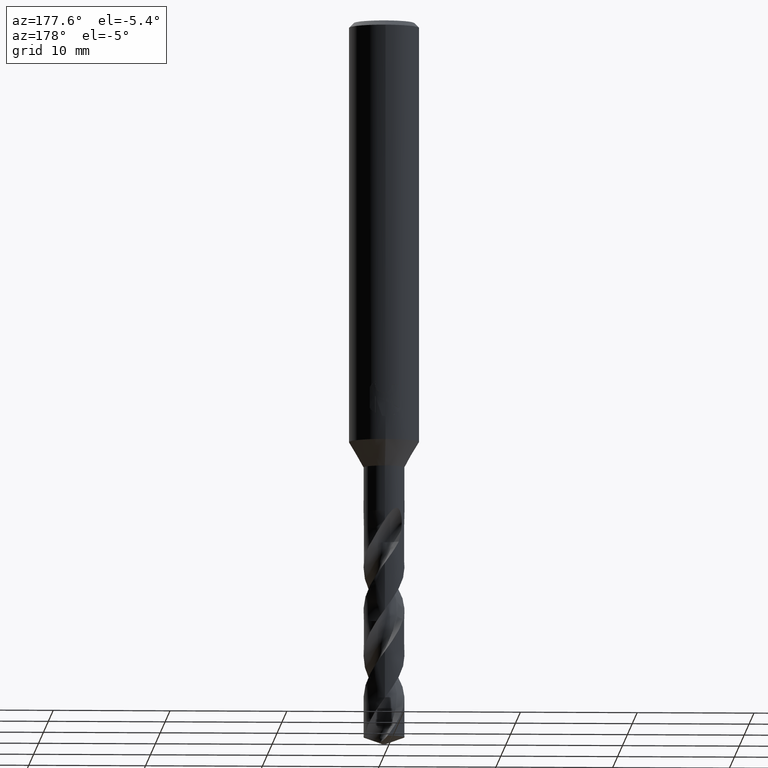
[diagram: clean part render]
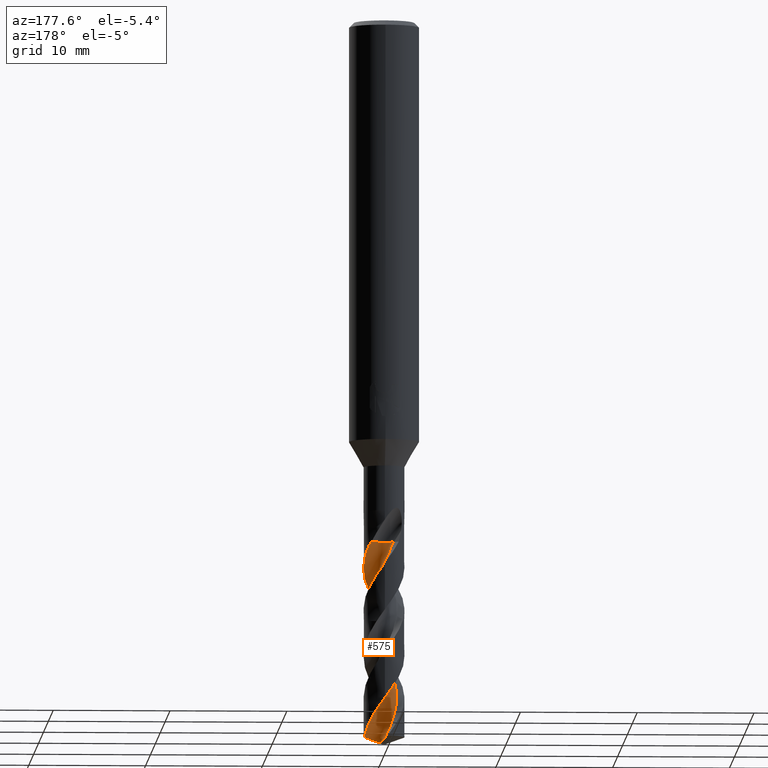
[diagram: same view with one face highlighted and labeled with its STEP entity id]
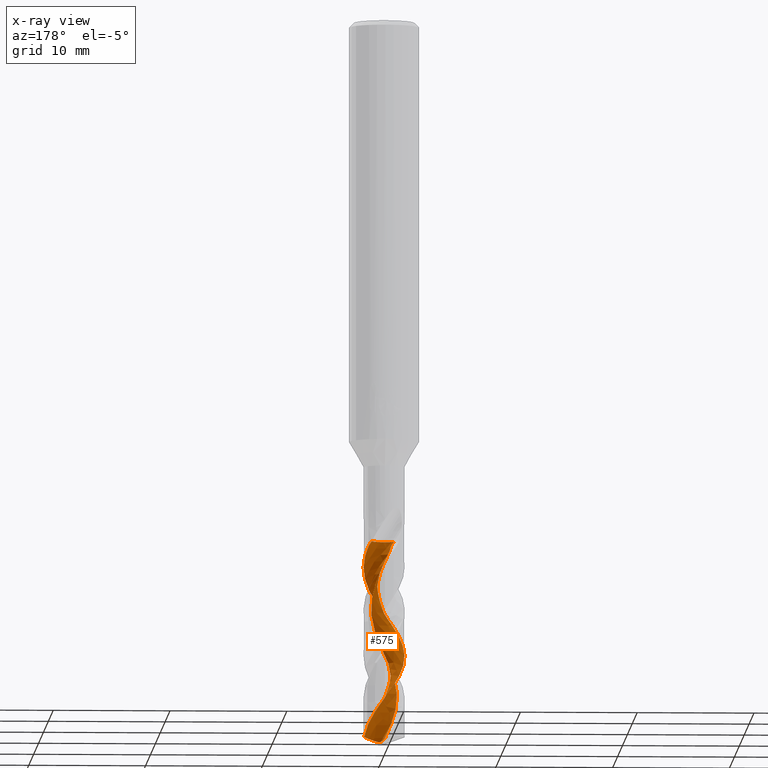
[diagram: x-ray of the same camera — body ghosted, the highlighted face saturated]
A machine part, auxiliary view. The second image highlights one B-rep face of the part: STEP entity #575.
The next image is the same camera in x-ray: the body ghosted, the highlighted face saturated — about 0% of this face is hidden behind the body in this view.
In plain terms, the highlighted face is a freeform B-spline surface patch.
Its self-contained STEP definition (entity closure, byte-faithful):
#269=EDGE_CURVE('',#635,#451,#760,.T.);
#283=EDGE_CURVE('',#711,#639,#776,.T.);
#293=VERTEX_POINT('',#787);
#303=VERTEX_POINT('',#798);
#309=EDGE_CURVE('',#303,#635,#804,.T.);
#323=VERTEX_POINT('',#818);
#451=VERTEX_POINT('',#962);
#467=EDGE_CURVE('',#293,#651,#978,.T.);
#575=ADVANCED_FACE('',(#1098),#1099,.F.);
#581=EDGE_CURVE('',#639,#293,#1106,.T.);
#635=VERTEX_POINT('',#1164);
#639=VERTEX_POINT('',#1168);
#651=VERTEX_POINT('',#1180);
#659=EDGE_CURVE('',#651,#323,#1188,.T.);
#663=EDGE_CURVE('',#451,#711,#1192,.T.);
#693=EDGE_CURVE('',#323,#303,#1225,.T.);
#711=VERTEX_POINT('',#1243);
#760=B_SPLINE_CURVE_WITH_KNOTS('',3,(#1288,#1289,#1290,#1291,#1292,#1293,#1294,#1295,#1296,#1297,#1298,#1299,#1300,#1301,#1302,#1303,#1304,#1305,#1306,#1307),.UNSPECIFIED.,.F.,.F.,(4,2,2,2,2,2,2,2,2,4),(0.0,0.718965852120497,1.21372397240133,1.67064581274034,2.16289241122164,2.70315150179197,3.3271942141647,4.04376559855394,4.58105510847209,5.11998395871714),.UNSPECIFIED.);
#776=B_SPLINE_CURVE_WITH_KNOTS('',3,(#1908,#1909,#1910,#1911,#1912,#1913,#1914,#1915,#1916,#1917,#1918,#1919,#1920,#1921,#1922,#1923,#1924,#1925,#1926,#1927,#1928,#1929,#1930,#1931,#1932,#1933,#1934,#1935,#1936,#1937,#1938,#1939,#1940,#1941,#1942,#1943,#1944,#1945,#1946,#1947,#1948,#1949,#1950,#1951,#1952,#1953,#1954,#1955,#1956,#1957,#1958,#1959,#1960,#1961,#1962,#1963,#1964,#1965,#1966,#1967,#1968,#1969,#1970,#1971,#1972,#1973,#1974,#1975,#1976,#1977,#1978,#1979,#1980,#1981,#1982,#1983,#1984,#1985,#1986,#1987,#1988,#1989,#1990,#1991,#1992,#1993),.UNSPECIFIED.,.F.,.F.,(4,2,2,2,2,2,2,2,2,2,2,2,2,2,2,2,2,2,2,2,2,2,2,2,2,2,2,2,2,2,2,2,2,2,2,2,2,2,2,2,2,2,4),(0.0,0.974043603745516,1.46729353331834,1.76439108332413,1.96733051675974,3.21720046240034,3.26681085383994,3.99778926377135,4.29223800571401,4.78287161761425,5.44931738732369,5.74865798885266,6.20238803819658,6.82915637049189,7.49330861572469,8.10202328078798,8.45425668812374,8.90065681122232,9.53005186130906,10.243743812598,10.8580122124303,11.9439378455943,12.6379561878717,12.7458551064634,13.4192767688239,13.7572930642747,14.4262161348574,15.1010790787376,15.7547320881622,16.4147496994472,17.0027110069048,18.6824305545575,18.9086185383265,19.2382380070086,19.6038826295242,19.8481728878445,20.151469172512,20.1797385471404,20.2188736800682,20.2526708029194,20.2943786016003,20.376954835032,20.5351807691826),.UNSPECIFIED.);
#787=CARTESIAN_POINT('',(4.32423866805716E-015,-1.74994399281796,-50.5183522565499));
#798=CARTESIAN_POINT('',(-0.824957913670616,0.866708756329383,-44.651));
#804=B_SPLINE_CURVE_WITH_KNOTS('',3,(#2119,#2120,#2121,#2122,#2123,#2124,#2125,#2126,#2127,#2128,#2129,#2130,#2131,#2132,#2133,#2134,#2135,#2136,#2137,#2138,#2139,#2140,#2141,#2142,#2143,#2144,#2145,#2146,#2147,#2148,#2149,#2150,#2151,#2152,#2153,#2154,#2155,#2156,#2157,#2158,#2159,#2160,#2161,#2162,#2163,#2164,#2165,#2166,#2167,#2168,#2169,#2170,#2171),.UNSPECIFIED.,.F.,.F.,(4,1,2,2,2,2,1,2,1,2,1,2,1,2,1,2,1,2,1,2,1,2,1,2,1,2,1,2,1,2,1,2,1,4),(0.0,0.385680883144135,0.77136176628827,1.54272353257654,2.31408529886481,3.08544706515308,3.85680883144135,4.62817059772962,5.39953236401789,6.17089413030616,6.94225589659443,7.7136176628827,8.48497942917098,9.25634119545925,10.0277029617475,10.7990647280358,11.5704264943241,12.3417882606123,13.1131500269006,13.8845117931889,14.6558735594771,15.4272353257654,16.1985970920537,16.969958858342,17.7413206246302,18.5126823909185,19.2840441572068,20.055405923495,20.8267676897833,21.5981294560716,22.3694912223598,23.1408529886481,23.9122147549364,24.6835765212247),.UNSPECIFIED.);
#818=CARTESIAN_POINT('',(-0.147339678899114,0.534331819549301,-44.651));
#962=CARTESIAN_POINT('',(8.260132003299E-015,1.08672768489196,-61.6044634699463));
#978=B_SPLINE_CURVE_WITH_KNOTS('',3,(#2819,#2820,#2821,#2822,#2823,#2824,#2825,#2826,#2827,#2828,#2829,#2830,#2831,#2832,#2833,#2834,#2835,#2836,#2837,#2838,#2839,#2840,#2841,#2842,#2843,#2844,#2845,#2846,#2847,#2848,#2849,#2850,#2851,#2852,#2853,#2854,#2855,#2856,#2857,#2858,#2859,#2860,#2861,#2862,#2863,#2864,#2865,#2866,#2867,#2868,#2869,#2870,#2871,#2872,#2873,#2874,#2875,#2876,#2877,#2878,#2879,#2880,#2881,#2882,#2883,#2884,#2885,#2886,#2887,#2888,#2889,#2890,#2891,#2892,#2893,#2894,#2895,#2896,#2897,#2898,#2899,#2900,#2901,#2902,#2903,#2904),.UNSPECIFIED.,.F.,.F.,(4,2,2,2,2,2,2,2,2,2,2,2,2,2,2,2,2,2,2,2,2,2,2,2,2,2,2,2,2,2,2,2,2,2,2,2,2,2,2,2,2,2,4),(0.0,0.974043603745516,1.46729353331834,1.76439108332413,1.96733051675974,3.21720046240034,3.26681085383994,3.99778926377135,4.29223800571401,4.78287161761425,5.44931738732369,5.74865798885266,6.20238803819658,6.82915637049189,7.49330861572469,8.10202328078798,8.45425668812374,8.90065681122232,9.53005186130906,10.243743812598,10.8580122124303,11.9439378455943,12.6379561878717,12.7458551064634,13.4192767688239,13.7572930642747,14.4262161348574,15.1010790787376,15.7547320881622,16.4147496994472,17.0027110069048,18.6824305545575,18.9086185383265,19.2382380070086,19.6038826295242,19.8481728878445,20.151469172512,20.1797385471404,20.2188736800682,20.2526708029194,20.2943786016003,20.376954835032,20.5351807691826),.UNSPECIFIED.);
#1098=FACE_OUTER_BOUND('',#3631,.T.);
#1099=B_SPLINE_SURFACE_WITH_KNOTS('',3,3,((#3632,#3633,#3634,#3635,#3636,#3637,#3638,#3639,#3640,#3641,#3642,#3643,#3644,#3645,#3646,#3647,#3648,#3649,#3650,#3651,#3652,#3653,#3654,#3655,#3656,#3657,#3658,#3659,#3660,#3661,#3662,#3663,#3664,#3665,#3666,#3667,#3668,#3669,#3670,#3671,#3672,#3673,#3674,#3675,#3676,#3677,#3678,#3679,#3680,#3681,#3682,#3683,#3684),(#3685,#3686,#3687,#3688,#3689,#3690,#3691,#3692,#3693,#3694,#3695,#3696,#3697,#3698,#3699,#3700,#3701,#3702,#3703,#3704,#3705,#3706,#3707,#3708,#3709,#3710,#3711,#3712,#3713,#3714,#3715,#3716,#3717,#3718,#3719,#3720,#3721,#3722,#3723,#3724,#3725,#3726,#3727,#3728,#3729,#3730,#3731,#3732,#3733,#3734,#3735,#3736,#3737),(#3738,#3739,#3740,#3741,#3742,#3743,#3744,#3745,#3746,#3747,#3748,#3749,#3750,#3751,#3752,#3753,#3754,#3755,#3756,#3757,#3758,#3759,#3760,#3761,#3762,#3763,#3764,#3765,#3766,#3767,#3768,#3769,#3770,#3771,#3772,#3773,#3774,#3775,#3776,#3777,#3778,#3779,#3780,#3781,#3782,#3783,#3784,#3785,#3786,#3787,#3788,#3789,#3790),(#3791,#3792,#3793,#3794,#3795,#3796,#3797,#3798,#3799,#3800,#3801,#3802,#3803,#3804,#3805,#3806,#3807,#3808,#3809,#3810,#3811,#3812,#3813,#3814,#3815,#3816,#3817,#3818,#3819,#3820,#3821,#3822,#3823,#3824,#3825,#3826,#3827,#3828,#3829,#3830,#3831,#3832,#3833,#3834,#3835,#3836,#3837,#3838,#3839,#3840,#3841,#3842,#3843),(#3844,#3845,#3846,#3847,#3848,#3849,#3850,#3851,#3852,#3853,#3854,#3855,#3856,#3857,#3858,#3859,#3860,#3861,#3862,#3863,#3864,#3865,#3866,#3867,#3868,#3869,#3870,#3871,#3872,#3873,#3874,#3875,#3876,#3877,#3878,#3879,#3880,#3881,#3882,#3883,#3884,#3885,#3886,#3887,#3888,#3889,#3890,#3891,#3892,#3893,#3894,#3895,#3896),(#3897,#3898,#3899,#3900,#3901,#3902,#3903,#3904,#3905,#3906,#3907,#3908,#3909,#3910,#3911,#3912,#3913,#3914,#3915,#3916,#3917,#3918,#3919,#3920,#3921,#3922,#3923,#3924,#3925,#3926,#3927,#3928,#3929,#3930,#3931,#3932,#3933,#3934,#3935,#3936,#3937,#3938,#3939,#3940,#3941,#3942,#3943,#3944,#3945,#3946,#3947,#3948,#3949),(#3950,#3951,#3952,#3953,#3954,#3955,#3956,#3957,#3958,#3959,#3960,#3961,#3962,#3963,#3964,#3965,#3966,#3967,#3968,#3969,#3970,#3971,#3972,#3973,#3974,#3975,#3976,#3977,#3978,#3979,#3980,#3981,#3982,#3983,#3984,#3985,#3986,#3987,#3988,#3989,#3990,#3991,#3992,#3993,#3994,#3995,#3996,#3997,#3998,#3999,#4000,#4001,#4002),(#4003,#4004,#4005,#4006,#4007,#4008,#4009,#4010,#4011,#4012,#4013,#4014,#4015,#4016,#4017,#4018,#4019,#4020,#4021,#4022,#4023,#4024,#4025,#4026,#4027,#4028,#4029,#4030,#4031,#4032,#4033,#4034,#4035,#4036,#4037,#4038,#4039,#4040,#4041,#4042,#4043,#4044,#4045,#4046,#4047,#4048,#4049,#4050,#4051,#4052,#4053,#4054,#4055),(#4056,#4057,#4058,#4059,#4060,#4061,#4062,#4063,#4064,#4065,#4066,#4067,#4068,#4069,#4070,#4071,#4072,#4073,#4074,#4075,#4076,#4077,#4078,#4079,#4080,#4081,#4082,#4083,#4084,#4085,#4086,#4087,#4088,#4089,#4090,#4091,#4092,#4093,#4094,#4095,#4096,#4097,#4098,#4099,#4100,#4101,#4102,#4103,#4104,#4105,#4106,#4107,#4108),(#4109,#4110,#4111,#4112,#4113,#4114,#4115,#4116,#4117,#4118,#4119,#4120,#4121,#4122,#4123,#4124,#4125,#4126,#4127,#4128,#4129,#4130,#4131,#4132,#4133,#4134,#4135,#4136,#4137,#4138,#4139,#4140,#4141,#4142,#4143,#4144,#4145,#4146,#4147,#4148,#4149,#4150,#4151,#4152,#4153,#4154,#4155,#4156,#4157,#4158,#4159,#4160,#4161),(#4162,#4163,#4164,#4165,#4166,#4167,#4168,#4169,#4170,#4171,#4172,#4173,#4174,#4175,#4176,#4177,#4178,#4179,#4180,#4181,#4182,#4183,#4184,#4185,#4186,#4187,#4188,#4189,#4190,#4191,#4192,#4193,#4194,#4195,#4196,#4197,#4198,#4199,#4200,#4201,#4202,#4203,#4204,#4205,#4206,#4207,#4208,#4209,#4210,#4211,#4212,#4213,#4214)),.UNSPECIFIED.,.F.,.F.,.F.,(4,1,1,1,1,1,1,1,4),(4,1,2,2,2,2,1,2,1,2,1,2,1,2,1,2,1,2,1,2,1,2,1,2,1,2,1,2,1,2,1,2,1,4),(-5.04344849032721E-017,0.392702354967204,0.785404709934407,1.17810706490161,1.57080941986881,1.96351177483602,2.35621412980322,2.74891648477042,3.14161883973763),(0.0,0.385680883144135,0.77136176628827,1.54272353257654,2.31408529886481,3.08544706515308,3.85680883144135,4.62817059772962,5.39953236401789,6.17089413030616,6.94225589659443,7.7136176628827,8.48497942917098,9.25634119545925,10.0277029617475,10.7990647280358,11.5704264943241,12.3417882606123,13.1131500269006,13.8845117931889,14.6558735594771,15.4272353257654,16.1985970920537,16.969958858342,17.7413206246302,18.5126823909185,19.2840441572068,20.055405923495,20.8267676897833,21.5981294560716,22.3694912223598,23.1408529886481,23.9122147549364,24.6835765212247),.UNSPECIFIED.);
#1106=B_SPLINE_CURVE_WITH_KNOTS('',3,(#4221,#4222,#4223,#4224,#4225,#4226,#4227,#4228,#4229,#4230,#4231,#4232,#4233,#4234,#4235,#4236,#4237,#4238,#4239,#4240,#4241,#4242,#4243,#4244,#4245,#4246,#4247,#4248,#4249,#4250,#4251,#4252,#4253,#4254,#4255,#4256,#4257,#4258,#4259,#4260,#4261,#4262,#4263,#4264,#4265,#4266,#4267,#4268,#4269,#4270,#4271,#4272,#4273,#4274,#4275,#4276,#4277,#4278,#4279,#4280,#4281,#4282,#4283,#4284,#4285,#4286,#4287,#4288,#4289,#4290,#4291,#4292,#4293,#4294,#4295,#4296,#4297,#4298,#4299,#4300,#4301,#4302,#4303,#4304,#4305,#4306),.UNSPECIFIED.,.F.,.F.,(4,2,2,2,2,2,2,2,2,2,2,2,2,2,2,2,2,2,2,2,2,2,2,2,2,2,2,2,2,2,2,2,2,2,2,2,2,2,2,2,2,2,4),(0.0,0.974043603745516,1.46729353331834,1.76439108332413,1.96733051675974,3.21720046240034,3.26681085383994,3.99778926377135,4.29223800571401,4.78287161761425,5.44931738732369,5.74865798885266,6.20238803819658,6.82915637049189,7.49330861572469,8.10202328078798,8.45425668812374,8.90065681122232,9.53005186130906,10.243743812598,10.8580122124303,11.9439378455943,12.6379561878717,12.7458551064634,13.4192767688239,13.7572930642747,14.4262161348574,15.1010790787376,15.7547320881622,16.4147496994472,17.0027110069048,18.6824305545575,18.9086185383265,19.2382380070086,19.6038826295242,19.8481728878445,20.151469172512,20.1797385471404,20.2188736800682,20.2526708029194,20.2943786016003,20.376954835032,20.5351807691826),.UNSPECIFIED.);
#1164=CARTESIAN_POINT('',(-0.00410059082968144,1.1008925800976,-61.59930509012));
#1168=CARTESIAN_POINT('',(-1.09890961226863E-014,1.74998323150977,-58.1161605916098));
#1180=CARTESIAN_POINT('',(1.11510249506521,1.34860830174318,-44.651));
#1188=CIRCLE('',#4674,1.16666667);
#1192=B_SPLINE_CURVE_WITH_KNOTS('',3,(#4679,#4680,#4681,#4682,#4683,#4684,#4685,#4686,#4687,#4688,#4689,#4690,#4691,#4692,#4693,#4694,#4695,#4696,#4697,#4698),.UNSPECIFIED.,.F.,.F.,(4,2,2,2,2,2,2,2,2,4),(0.0,0.718965852120497,1.21372397240133,1.67064581274034,2.16289241122164,2.70315150179197,3.3271942141647,4.04376559855394,4.58105510847209,5.11998395871714),.UNSPECIFIED.);
#1225=CIRCLE('',#4969,1.16666667);
#1243=CARTESIAN_POINT('',(1.70445062211904,0.396671245186779,-61.3630520900341));
#1288=CARTESIAN_POINT('',(-0.00410059082964898,1.10089258009759,-61.59930509012));
#1289=CARTESIAN_POINT('',(0.0580031119664493,0.883409993141356,-61.6785459232694));
#1290=CARTESIAN_POINT('',(0.15349537669291,0.687651559565481,-61.7495670132092));
#1291=CARTESIAN_POINT('',(0.317777077006929,0.434240368615647,-61.8078681601848));
#1292=CARTESIAN_POINT('',(0.384611439343546,0.352355397067978,-61.8134085903166));
#1293=CARTESIAN_POINT('',(0.525364852737955,0.221846152723953,-61.7949705851084));
#1294=CARTESIAN_POINT('',(0.599113682054058,0.171647891333685,-61.7739392013844));
#1295=CARTESIAN_POINT('',(0.766345501008977,0.0961363645705255,-61.7196094051466));
#1296=CARTESIAN_POINT('',(0.862974341628334,0.0720624937613689,-61.6848374640254));
#1297=CARTESIAN_POINT('',(1.08106833037147,0.0632539125785515,-61.6058769776057));
#1298=CARTESIAN_POINT('',(1.19482879725058,0.0829284092034697,-61.5642050994937));
#1299=CARTESIAN_POINT('',(1.42696388571855,0.168960156495123,-61.477147905998));
#1300=CARTESIAN_POINT('',(1.54121980200102,0.241218290063536,-61.4327813595935));
#1301=CARTESIAN_POINT('',(1.75390001169996,0.437308044935434,-61.3427357052062));
#1302=CARTESIAN_POINT('',(1.84589773021898,0.565626402453788,-61.2984554539596));
#1303=CARTESIAN_POINT('',(1.96321291271616,0.814266384425864,-61.2270081604445));
#1304=CARTESIAN_POINT('',(1.99913523329107,0.927845168265506,-61.1985572536881));
#1305=CARTESIAN_POINT('',(2.04152789826365,1.16218708097715,-61.1456704517723));
#1306=CARTESIAN_POINT('',(2.04782295399884,1.28247655737102,-61.1213614264305));
#1307=CARTESIAN_POINT('',(2.03923356837,1.40232893916974,-61.0992196272011));
#1908=CARTESIAN_POINT('',(1.70445062211904,0.396671245186766,-61.3630520900342));
#1909=CARTESIAN_POINT('',(1.66111375343563,0.582878795991717,-61.1006277270643));
#1910=CARTESIAN_POINT('',(1.58775279467385,0.760070525583836,-60.8353089726521));
#1911=CARTESIAN_POINT('',(1.43683977407769,1.00361918979296,-60.4394156216837));
#1912=CARTESIAN_POINT('',(1.37939731816996,1.08122741332449,-60.3071144713288));
#1913=CARTESIAN_POINT('',(1.27747170770906,1.19746411011267,-60.0941099033158));
#1914=CARTESIAN_POINT('',(1.2370785707928,1.23913814808578,-60.0141326581067));
#1915=CARTESIAN_POINT('',(1.16588837190418,1.30565733589649,-59.8790937403446));
#1916=CARTESIAN_POINT('',(1.13616281535945,1.33160013549033,-59.8241531910214));
#1917=CARTESIAN_POINT('',(0.917503542742688,1.50981701071042,-59.4323598420131));
#1918=CARTESIAN_POINT('',(0.699939590836492,1.6220712371892,-59.1059421767772));
#1919=CARTESIAN_POINT('',(0.457430316550718,1.68917218032921,-58.7557105566524));
#1920=CARTESIAN_POINT('',(0.448169672333806,1.69165274361652,-58.742350986773));
#1921=CARTESIAN_POINT('',(0.301731563413887,1.72958775933734,-58.5317923575118));
#1922=CARTESIAN_POINT('',(0.160374240969461,1.74844824294004,-58.3368816761276));
#1923=CARTESIAN_POINT('',(-0.0397114107212767,1.75047554570916,-58.0615061844922));
#1924=CARTESIAN_POINT('',(-0.0971000619172283,1.74822712155988,-57.9825471787972));
#1925=CARTESIAN_POINT('',(-0.249383096063619,1.73475390406472,-57.7714867007185));
#1926=CARTESIAN_POINT('',(-0.343454401134999,1.71858224390627,-57.6387227046301));
#1927=CARTESIAN_POINT('',(-0.560782430700384,1.66272485666103,-57.3277364764948));
#1928=CARTESIAN_POINT('',(-0.682223205146323,1.6167339927672,-57.1503787764035));
#1929=CARTESIAN_POINT('',(-0.849571903749761,1.53102671754663,-56.8914786261135));
#1930=CARTESIAN_POINT('',(-0.899991839877137,1.50193376399665,-56.8113280113028));
#1931=CARTESIAN_POINT('',(-1.02275526102285,1.42272080324665,-56.6090824111837));
#1932=CARTESIAN_POINT('',(-1.09291319908538,1.36956643417475,-56.4865038305781));
#1933=CARTESIAN_POINT('',(-1.25009100686924,1.2306444777674,-56.196236190568));
#1934=CARTESIAN_POINT('',(-1.33272314641203,1.14067541649712,-56.0293362357362));
#1935=CARTESIAN_POINT('',(-1.48245864640476,0.938845270061716,-55.6831902092667));
#1936=CARTESIAN_POINT('',(-1.54757235929656,0.827011149522708,-55.5039983952524));
#1937=CARTESIAN_POINT('',(-1.64747906914125,0.60173851428813,-55.1625694686745));
#1938=CARTESIAN_POINT('',(-1.68434023116717,0.48926627574313,-55.0006458954861));
#1939=CARTESIAN_POINT('',(-1.72422276281697,0.306795424210424,-54.7435315090941));
#1940=CARTESIAN_POINT('',(-1.73487631064609,0.239237533182169,-54.6494628138491));
#1941=CARTESIAN_POINT('',(-1.7500181267817,0.0853392422058732,-54.4353502837866));
#1942=CARTESIAN_POINT('',(-1.75210100653162,-0.00107227030882243,-54.3149763188469));
#1943=CARTESIAN_POINT('',(-1.74167475010098,-0.209329773673887,-54.026446855104));
#1944=CARTESIAN_POINT('',(-1.72284662887104,-0.330344266472516,-53.8591289105452));
#1945=CARTESIAN_POINT('',(-1.65593178564536,-0.582655896060815,-53.4995842491892));
#1946=CARTESIAN_POINT('',(-1.60463739893164,-0.711739973045769,-53.3072289639327));
#1947=CARTESIAN_POINT('',(-1.48225958785939,-0.937757519943169,-52.9515276307979));
#1948=CARTESIAN_POINT('',(-1.41507297401583,-1.03640346768522,-52.7883758271165));
#1949=CARTESIAN_POINT('',(-1.20240705204541,-1.28879433872343,-52.3338696907037));
#1950=CARTESIAN_POINT('',(-1.03866864049816,-1.4240569713268,-52.0421003760237));
#1951=CARTESIAN_POINT('',(-0.737152866704635,-1.59282136934979,-51.5663391862274));
#1952=CARTESIAN_POINT('',(-0.612761668198803,-1.64461578884811,-51.3825367485944));
#1953=CARTESIAN_POINT('',(-0.46412755054388,-1.68740464322907,-51.1674712080571));
#1954=CARTESIAN_POINT('',(-0.444069058577488,-1.69279394910898,-51.1385219814925));
#1955=CARTESIAN_POINT('',(-0.297792021071381,-1.72931119589532,-50.9288635187979));
#1956=CARTESIAN_POINT('',(-0.168237702558041,-1.74674214283987,-50.7499295448648));
#1957=CARTESIAN_POINT('',(0.0281434550331753,-1.7509484324924,-50.4796060920438));
#1958=CARTESIAN_POINT('',(0.0937255266915751,-1.74865852571378,-50.3894450729513));
#1959=CARTESIAN_POINT('',(0.28802340758148,-1.73093563523919,-50.1200035044059));
#1960=CARTESIAN_POINT('',(0.415242880349005,-1.70489719371554,-49.9396748773872));
#1961=CARTESIAN_POINT('',(0.663039350482678,-1.62473789594746,-49.5800880072757));
#1962=CARTESIAN_POINT('',(0.782541703239305,-1.57067058661592,-49.4012445056599));
#1963=CARTESIAN_POINT('',(1.00371832959248,-1.43904937962742,-49.0458034145992));
#1964=CARTESIAN_POINT('',(1.10506082764541,-1.36277562126206,-48.8696036862986));
#1965=CARTESIAN_POINT('',(1.29068702199907,-1.1885922007965,-48.5181324014442));
#1966=CARTESIAN_POINT('',(1.37406875977103,-1.09112744220459,-48.3432509451989));
#1967=CARTESIAN_POINT('',(1.5102557859521,-0.89127349771003,-48.0095085470695));
#1968=CARTESIAN_POINT('',(1.56490286518746,-0.791339379442095,-47.8510735445792));
#1969=CARTESIAN_POINT('',(1.73674919127346,-0.388709344592217,-47.2445792046914));
#1970=CARTESIAN_POINT('',(1.77843472854853,-0.0612216661643396,-46.8100289076692));
#1971=CARTESIAN_POINT('',(1.72434039218624,0.301280513327416,-46.3001707751267));
#1972=CARTESIAN_POINT('',(1.71634452426745,0.343921872167593,-46.239486864509));
#1973=CARTESIAN_POINT('',(1.69273109039206,0.448227549775436,-46.0908294514217));
#1974=CARTESIAN_POINT('',(1.67528687986777,0.509675107873629,-46.0028602644596));
#1975=CARTESIAN_POINT('',(1.6310841474923,0.637862585687191,-45.8181730928832));
#1976=CARTESIAN_POINT('',(1.60465840116886,0.701491312862852,-45.7269515047296));
#1977=CARTESIAN_POINT('',(1.55420514691762,0.805483728752306,-45.5700227988301));
#1978=CARTESIAN_POINT('',(1.53265774441084,0.845685180469283,-45.5070741073848));
#1979=CARTESIAN_POINT('',(1.48187185568404,0.932397204471638,-45.3639239434804));
#1980=CARTESIAN_POINT('',(1.45238110249454,0.977499135896794,-45.284184341318));
#1981=CARTESIAN_POINT('',(1.41924038897341,1.02371284136555,-45.1947509797476));
#1982=CARTESIAN_POINT('',(1.41518842395563,1.02934171153325,-45.1837623069212));
#1983=CARTESIAN_POINT('',(1.40140800341192,1.04806714060262,-45.1479279853233));
#1984=CARTESIAN_POINT('',(1.3931417541667,1.05903684440975,-45.1273175201372));
#1985=CARTESIAN_POINT('',(1.37716823392561,1.07970367003265,-45.089194365686));
#1986=CARTESIAN_POINT('',(1.3695527208986,1.0893516756239,-45.0716767293017));
#1987=CARTESIAN_POINT('',(1.35201596561273,1.11107854513732,-45.0328292403263));
#1988=CARTESIAN_POINT('',(1.34199119669697,1.12317441763336,-45.0116087828324));
#1989=CARTESIAN_POINT('',(1.31101459670804,1.15950432557998,-44.9489918242306));
#1990=CARTESIAN_POINT('',(1.28908950114928,1.18389412316861,-44.9084188480899));
#1991=CARTESIAN_POINT('',(1.22066440547017,1.25555465878816,-44.7924710095003));
#1992=CARTESIAN_POINT('',(1.17071462837619,1.30262563852666,-44.720407341835));
#1993=CARTESIAN_POINT('',(1.11510249506521,1.34860830174318,-44.651));
#2119=CARTESIAN_POINT('',(-0.824957913670616,0.866708756329382,-44.651));
#2120=CARTESIAN_POINT('',(-0.738602127435437,0.864147723143203,-44.7413055595007));
#2121=CARTESIAN_POINT('',(-0.600594791378275,0.875644352614756,-44.9209792588245));
#2122=CARTESIAN_POINT('',(-0.531732503928989,0.918460877808611,-45.1005265049174));
#2123=CARTESIAN_POINT('',(-0.470302074277321,1.013017675662,-45.3735789696739));
#2124=CARTESIAN_POINT('',(-0.396853920824291,1.05188237458054,-45.5561706905845));
#2125=CARTESIAN_POINT('',(-0.223236498770324,1.07907154994351,-45.9156239803504));
#2126=CARTESIAN_POINT('',(-0.140380213758918,1.08965757179371,-46.0956679117454));
#2127=CARTESIAN_POINT('',(0.0203078817712408,1.10612076384485,-46.4582797572897));
#2128=CARTESIAN_POINT('',(0.103345702016572,1.10142455985184,-46.6393286734805));
#2129=CARTESIAN_POINT('',(0.265382527969186,1.07541725819964,-47.0005808932107));
#2130=CARTESIAN_POINT('',(0.425408411725347,1.02553725309916,-47.3620764617483));
#2131=CARTESIAN_POINT('',(0.569971990316319,0.943715726327649,-47.7233410447231));
#2132=CARTESIAN_POINT('',(0.705317642730633,0.853529225179083,-48.0850320468078));
#2133=CARTESIAN_POINT('',(0.828544591080089,0.740767088276618,-48.4469295012846));
#2134=CARTESIAN_POINT('',(0.923182293259144,0.603784987525937,-48.8082572478206));
#2135=CARTESIAN_POINT('',(1.00568422221908,0.463272286301535,-49.1697673110856));
#2136=CARTESIAN_POINT('',(1.06767943420804,0.308109685995511,-49.5315272165033));
#2137=CARTESIAN_POINT('',(1.09367851530817,0.143764112979888,-49.8928449852672));
#2138=CARTESIAN_POINT('',(1.10712255215386,-0.0185887120580774,-50.2544100649984));
#2139=CARTESIAN_POINT('',(1.09566847234556,-0.185304109619444,-50.616206530123));
#2140=CARTESIAN_POINT('',(1.04779377255651,-0.344682696937773,-50.9775246262911));
#2141=CARTESIAN_POINT('',(0.989535695432579,-0.496814015788758,-51.3390770566521));
#2142=CARTESIAN_POINT('',(0.906960032238585,-0.642079507648488,-51.7008657385388));
#2143=CARTESIAN_POINT('',(0.794732335017834,-0.76494242219761,-52.0621837828547));
#2144=CARTESIAN_POINT('',(0.676273579657813,-0.876766580030296,-52.4237382638958));
#2145=CARTESIAN_POINT('',(0.538872925538063,-0.971857437559466,-52.7855286462446));
#2146=CARTESIAN_POINT('',(0.384461448399632,-1.03389847608341,-53.1468467626803));
#2147=CARTESIAN_POINT('',(0.229222992104234,-1.0832898983475,-53.50840019274));
#2148=CARTESIAN_POINT('',(0.0641753693437678,-1.10939210504287,-53.8701899159239));
#2149=CARTESIAN_POINT('',(-0.101868346687018,-1.09833894908456,-54.2315085240348));
#2150=CARTESIAN_POINT('',(-0.263172643950607,-1.07552673800099,-54.5930629414615));
#2151=CARTESIAN_POINT('',(-0.423216062876823,-1.02747990225927,-54.9548524793116));
#2152=CARTESIAN_POINT('',(-0.568046440307302,-0.945534159201965,-55.3161704622141));
#2153=CARTESIAN_POINT('',(-0.703510015497795,-0.855052646205478,-55.677725102675));
#2154=CARTESIAN_POINT('',(-0.826895129983589,-0.742369143043737,-56.0395157285119));
#2155=CARTESIAN_POINT('',(-0.921866759183319,-0.605722545685503,-56.4008336198255));
#2156=CARTESIAN_POINT('',(-1.00469435843704,-0.465445265868932,-56.7623863451112));
#2157=CARTESIAN_POINT('',(-1.06701864493074,-0.310410561557682,-57.1241747680895));
#2158=CARTESIAN_POINT('',(-1.09335663808011,-0.146104642435337,-57.4854952354524));
#2159=CARTESIAN_POINT('',(-1.10717048292511,0.0162142195905772,-57.8470549621285));
#2160=CARTESIAN_POINT('',(-1.09606974997597,0.182961440912022,-58.2088494006131));
#2161=CARTESIAN_POINT('',(-1.04851497829018,0.342441798556093,-58.5701554774195));
#2162=CARTESIAN_POINT('',(-0.990585596987902,0.494687751794721,-58.9316840657506));
#2163=CARTESIAN_POINT('',(-0.908408038135352,0.640118678624056,-59.2934606903093));
#2164=CARTESIAN_POINT('',(-0.796393188073106,0.763226757893614,-59.6548286941016));
#2165=CARTESIAN_POINT('',(-0.677931438170882,0.875239081963388,-60.0164736658765));
#2166=CARTESIAN_POINT('',(-0.540501985683428,0.970540440201328,-60.3782965066731));
#2167=CARTESIAN_POINT('',(-0.386802032735983,1.03333335611909,-60.7394814605954));
#2168=CARTESIAN_POINT('',(-0.232723456628951,1.08410406829694,-61.1008254511907));
#2169=CARTESIAN_POINT('',(-0.0678263564296508,1.11062587099312,-61.4625841422279));
#2170=CARTESIAN_POINT('',(0.0997607876999111,1.09645536495062,-61.823815080599));
#2171=CARTESIAN_POINT('',(0.181167333131469,1.08264916221989,-62.0044122895023));
#2819=CARTESIAN_POINT('',(1.70445062211904,0.396671245186766,-61.3630520900342));
#2820=CARTESIAN_POINT('',(1.66111375343563,0.582878795991717,-61.1006277270643));
#2821=CARTESIAN_POINT('',(1.58775279467385,0.760070525583836,-60.8353089726521));
#2822=CARTESIAN_POINT('',(1.43683977407769,1.00361918979296,-60.4394156216837));
#2823=CARTESIAN_POINT('',(1.37939731816996,1.08122741332449,-60.3071144713288));
#2824=CARTESIAN_POINT('',(1.27747170770906,1.19746411011267,-60.0941099033158));
#2825=CARTESIAN_POINT('',(1.2370785707928,1.23913814808578,-60.0141326581067));
#2826=CARTESIAN_POINT('',(1.16588837190418,1.30565733589649,-59.8790937403446));
#2827=CARTESIAN_POINT('',(1.13616281535945,1.33160013549033,-59.8241531910214));
#2828=CARTESIAN_POINT('',(0.917503542742688,1.50981701071042,-59.4323598420131));
#2829=CARTESIAN_POINT('',(0.699939590836492,1.6220712371892,-59.1059421767772));
#2830=CARTESIAN_POINT('',(0.457430316550718,1.68917218032921,-58.7557105566524));
#2831=CARTESIAN_POINT('',(0.448169672333806,1.69165274361652,-58.742350986773));
#2832=CARTESIAN_POINT('',(0.301731563413887,1.72958775933734,-58.5317923575118));
#2833=CARTESIAN_POINT('',(0.160374240969461,1.74844824294004,-58.3368816761276));
#2834=CARTESIAN_POINT('',(-0.0397114107212767,1.75047554570916,-58.0615061844922));
#2835=CARTESIAN_POINT('',(-0.0971000619172283,1.74822712155988,-57.9825471787972));
#2836=CARTESIAN_POINT('',(-0.249383096063619,1.73475390406472,-57.7714867007185));
#2837=CARTESIAN_POINT('',(-0.343454401134999,1.71858224390627,-57.6387227046301));
#2838=CARTESIAN_POINT('',(-0.560782430700384,1.66272485666103,-57.3277364764948));
#2839=CARTESIAN_POINT('',(-0.682223205146323,1.6167339927672,-57.1503787764035));
#2840=CARTESIAN_POINT('',(-0.849571903749761,1.53102671754663,-56.8914786261135));
#2841=CARTESIAN_POINT('',(-0.899991839877137,1.50193376399665,-56.8113280113028));
#2842=CARTESIAN_POINT('',(-1.02275526102285,1.42272080324665,-56.6090824111837));
#2843=CARTESIAN_POINT('',(-1.09291319908538,1.36956643417475,-56.4865038305781));
#2844=CARTESIAN_POINT('',(-1.25009100686924,1.2306444777674,-56.196236190568));
#2845=CARTESIAN_POINT('',(-1.33272314641203,1.14067541649712,-56.0293362357362));
#2846=CARTESIAN_POINT('',(-1.48245864640476,0.938845270061716,-55.6831902092667));
#2847=CARTESIAN_POINT('',(-1.54757235929656,0.827011149522708,-55.5039983952524));
#2848=CARTESIAN_POINT('',(-1.64747906914125,0.60173851428813,-55.1625694686745));
#2849=CARTESIAN_POINT('',(-1.68434023116717,0.48926627574313,-55.0006458954861));
#2850=CARTESIAN_POINT('',(-1.72422276281697,0.306795424210424,-54.7435315090941));
#2851=CARTESIAN_POINT('',(-1.73487631064609,0.239237533182169,-54.6494628138491));
#2852=CARTESIAN_POINT('',(-1.7500181267817,0.0853392422058732,-54.4353502837866));
#2853=CARTESIAN_POINT('',(-1.75210100653162,-0.00107227030882243,-54.3149763188469));
#2854=CARTESIAN_POINT('',(-1.74167475010098,-0.209329773673887,-54.026446855104));
#2855=CARTESIAN_POINT('',(-1.72284662887104,-0.330344266472516,-53.8591289105452));
#2856=CARTESIAN_POINT('',(-1.65593178564536,-0.582655896060815,-53.4995842491892));
#2857=CARTESIAN_POINT('',(-1.60463739893164,-0.711739973045769,-53.3072289639327));
#2858=CARTESIAN_POINT('',(-1.48225958785939,-0.937757519943169,-52.9515276307979));
#2859=CARTESIAN_POINT('',(-1.41507297401583,-1.03640346768522,-52.7883758271165));
#2860=CARTESIAN_POINT('',(-1.20240705204541,-1.28879433872343,-52.3338696907037));
#2861=CARTESIAN_POINT('',(-1.03866864049816,-1.4240569713268,-52.0421003760237));
#2862=CARTESIAN_POINT('',(-0.737152866704635,-1.59282136934979,-51.5663391862274));
#2863=CARTESIAN_POINT('',(-0.612761668198803,-1.64461578884811,-51.3825367485944));
#2864=CARTESIAN_POINT('',(-0.46412755054388,-1.68740464322907,-51.1674712080571));
#2865=CARTESIAN_POINT('',(-0.444069058577488,-1.69279394910898,-51.1385219814925));
#2866=CARTESIAN_POINT('',(-0.297792021071381,-1.72931119589532,-50.9288635187979));
#2867=CARTESIAN_POINT('',(-0.168237702558041,-1.74674214283987,-50.7499295448648));
#2868=CARTESIAN_POINT('',(0.0281434550331753,-1.7509484324924,-50.4796060920438));
#2869=CARTESIAN_POINT('',(0.0937255266915751,-1.74865852571378,-50.3894450729513));
#2870=CARTESIAN_POINT('',(0.28802340758148,-1.73093563523919,-50.1200035044059));
#2871=CARTESIAN_POINT('',(0.415242880349005,-1.70489719371554,-49.9396748773872));
#2872=CARTESIAN_POINT('',(0.663039350482678,-1.62473789594746,-49.5800880072757));
#2873=CARTESIAN_POINT('',(0.782541703239305,-1.57067058661592,-49.4012445056599));
#2874=CARTESIAN_POINT('',(1.00371832959248,-1.43904937962742,-49.0458034145992));
#2875=CARTESIAN_POINT('',(1.10506082764541,-1.36277562126206,-48.8696036862986));
#2876=CARTESIAN_POINT('',(1.29068702199907,-1.1885922007965,-48.5181324014442));
#2877=CARTESIAN_POINT('',(1.37406875977103,-1.09112744220459,-48.3432509451989));
#2878=CARTESIAN_POINT('',(1.5102557859521,-0.89127349771003,-48.0095085470695));
#2879=CARTESIAN_POINT('',(1.56490286518746,-0.791339379442095,-47.8510735445792));
#2880=CARTESIAN_POINT('',(1.73674919127346,-0.388709344592217,-47.2445792046914));
#2881=CARTESIAN_POINT('',(1.77843472854853,-0.0612216661643396,-46.8100289076692));
#2882=CARTESIAN_POINT('',(1.72434039218624,0.301280513327416,-46.3001707751267));
#2883=CARTESIAN_POINT('',(1.71634452426745,0.343921872167593,-46.239486864509));
#2884=CARTESIAN_POINT('',(1.69273109039206,0.448227549775436,-46.0908294514217));
#2885=CARTESIAN_POINT('',(1.67528687986777,0.509675107873629,-46.0028602644596));
#2886=CARTESIAN_POINT('',(1.6310841474923,0.637862585687191,-45.8181730928832));
#2887=CARTESIAN_POINT('',(1.60465840116886,0.701491312862852,-45.7269515047296));
#2888=CARTESIAN_POINT('',(1.55420514691762,0.805483728752306,-45.5700227988301));
#2889=CARTESIAN_POINT('',(1.53265774441084,0.845685180469283,-45.5070741073848));
#2890=CARTESIAN_POINT('',(1.48187185568404,0.932397204471638,-45.3639239434804));
#2891=CARTESIAN_POINT('',(1.45238110249454,0.977499135896794,-45.284184341318));
#2892=CARTESIAN_POINT('',(1.41924038897341,1.02371284136555,-45.1947509797476));
#2893=CARTESIAN_POINT('',(1.41518842395563,1.02934171153325,-45.1837623069212));
#2894=CARTESIAN_POINT('',(1.40140800341192,1.04806714060262,-45.1479279853233));
#2895=CARTESIAN_POINT('',(1.3931417541667,1.05903684440975,-45.1273175201372));
#2896=CARTESIAN_POINT('',(1.37716823392561,1.07970367003265,-45.089194365686));
#2897=CARTESIAN_POINT('',(1.3695527208986,1.0893516756239,-45.0716767293017));
#2898=CARTESIAN_POINT('',(1.35201596561273,1.11107854513732,-45.0328292403263));
#2899=CARTESIAN_POINT('',(1.34199119669697,1.12317441763336,-45.0116087828324));
#2900=CARTESIAN_POINT('',(1.31101459670804,1.15950432557998,-44.9489918242306));
#2901=CARTESIAN_POINT('',(1.28908950114928,1.18389412316861,-44.9084188480899));
#2902=CARTESIAN_POINT('',(1.22066440547017,1.25555465878816,-44.7924710095003));
#2903=CARTESIAN_POINT('',(1.17071462837619,1.30262563852666,-44.720407341835));
#2904=CARTESIAN_POINT('',(1.11510249506521,1.34860830174318,-44.651));
#3631=EDGE_LOOP('',(#5543,#5544,#5545,#5546,#5547,#5548,#5549,#5550));
#3632=CARTESIAN_POINT('',(0.824957913670618,2.51662458367062,-44.651));
#3633=CARTESIAN_POINT('',(0.916588599938295,2.508788637331,-44.7411701179746));
#3634=CARTESIAN_POINT('',(1.10185297044827,2.47418067995297,-44.9230964699333));
#3635=CARTESIAN_POINT('',(1.28383932552178,2.38835203146534,-45.1055588423096));
#3636=CARTESIAN_POINT('',(1.54323677808106,2.21297337380407,-45.3748661609712));
#3637=CARTESIAN_POINT('',(1.70164253406075,2.08449427670597,-45.5534935737302));
#3638=CARTESIAN_POINT('',(1.996415425093,1.8160278116135,-45.9173054650512));
#3639=CARTESIAN_POINT('',(2.12832441477346,1.66376924639237,-46.0989341296417));
#3640=CARTESIAN_POINT('',(2.35010386169435,1.3267111803819,-46.4593308149116));
#3641=CARTESIAN_POINT('',(2.44285521004576,1.14657497769764,-46.6397960885208));
#3642=CARTESIAN_POINT('',(2.58525498326149,0.769623083743134,-47.0016788864646));
#3643=CARTESIAN_POINT('',(2.68692955265179,0.378590957432689,-47.3632971852099));
#3644=CARTESIAN_POINT('',(2.699864808546,-0.0256065097702388,-47.7251790003088));
#3645=CARTESIAN_POINT('',(2.66385717036559,-0.427145732353125,-48.0865823700441));
#3646=CARTESIAN_POINT('',(2.58522162945743,-0.823662344448487,-48.4477530754901));
#3647=CARTESIAN_POINT('',(2.42153544179518,-1.19367333990166,-48.8095588908804));
#3648=CARTESIAN_POINT('',(2.21510112037394,-1.54002615368942,-49.1711615268048));
#3649=CARTESIAN_POINT('',(1.97236642006741,-1.86327558909076,-49.5324855333837));
#3650=CARTESIAN_POINT('',(1.66443921295393,-2.12563022664572,-49.894303950703));
#3651=CARTESIAN_POINT('',(1.32826642481409,-2.34817868097213,-50.2558458920228));
#3652=CARTESIAN_POINT('',(0.969398752890506,-2.53421670866371,-50.617129151914));
#3653=CARTESIAN_POINT('',(0.578159384239832,-2.63714190987944,-50.9789468142801));
#3654=CARTESIAN_POINT('',(0.178718397022537,-2.69191686552672,-51.3405026829412));
#3655=CARTESIAN_POINT('',(-0.225335076116519,-2.70393861297994,-51.701794615573));
#3656=CARTESIAN_POINT('',(-0.622507998016216,-2.62702624470188,-52.0636124391174));
#3657=CARTESIAN_POINT('',(-1.00619229254311,-2.50317687109035,-52.4251660641312));
#3658=CARTESIAN_POINT('',(-1.3754951574621,-2.33880493099355,-52.7864560888997));
#3659=CARTESIAN_POINT('',(-1.70003784973885,-2.09728295896538,-53.1482738080003));
#3660=CARTESIAN_POINT('',(-1.9920747869144,-1.81931678452289,-53.5098286230721));
#3661=CARTESIAN_POINT('',(-2.25358211231777,-1.51107185257095,-53.8711194396233));
#3662=CARTESIAN_POINT('',(-2.44130528889129,-1.15271575508707,-54.2329366015066));
#3663=CARTESIAN_POINT('',(-2.58393763084572,-0.775614342831047,-54.5944902027609));
#3664=CARTESIAN_POINT('',(-2.68593113141905,-0.384464076469422,-54.9557810131282));
#3665=CARTESIAN_POINT('',(-2.69970199472856,0.0198521489517522,-55.3175989288725));
#3666=CARTESIAN_POINT('',(-2.66470701139578,0.421508356058667,-55.6791527074872));
#3667=CARTESIAN_POINT('',(-2.58700096328539,0.818200469497298,-56.040443099992));
#3668=CARTESIAN_POINT('',(-2.42409428762421,1.18850059260141,-56.4022609047883));
#3669=CARTESIAN_POINT('',(-2.21840151640445,1.53525827760794,-56.7638152272408));
#3670=CARTESIAN_POINT('',(-1.9763704713186,1.85902179264264,-57.1251051029504));
#3671=CARTESIAN_POINT('',(-1.66900182524137,2.12205742659138,-57.4869208217425));
#3672=CARTESIAN_POINT('',(-1.33328416383268,2.34532879312473,-57.84847326861));
#3673=CARTESIAN_POINT('',(-0.974803489438592,2.53213541037525,-58.2097675223767));
#3674=CARTESIAN_POINT('',(-0.583798309887144,2.63590188904076,-58.5715962710725));
#3675=CARTESIAN_POINT('',(-0.184503911621649,2.69153287683059,-58.9331611506383));
#3676=CARTESIAN_POINT('',(0.219490621383317,2.7043922616431,-59.2944336498314));
#3677=CARTESIAN_POINT('',(0.616829381820291,2.62835059623178,-59.6562043899743));
#3678=CARTESIAN_POINT('',(1.00085998933986,2.50542931387683,-60.0177225931905));
#3679=CARTESIAN_POINT('',(1.37070518289843,2.34194867493289,-60.3790989556878));
#3680=CARTESIAN_POINT('',(1.69569720475224,2.10077795242523,-60.7410674180081));
#3681=CARTESIAN_POINT('',(1.98777336460009,1.82275774626061,-61.1026805448005));
#3682=CARTESIAN_POINT('',(2.24917704994234,1.51501838554061,-61.4636527540348));
#3683=CARTESIAN_POINT('',(2.43869739145772,1.15890531333212,-61.8249905784265));
#3684=CARTESIAN_POINT('',(2.51186682428496,0.971821331531964,-62.0056566785439));
#3685=CARTESIAN_POINT('',(0.932941566552014,2.40863295980549,-44.6509999999998));
#3686=CARTESIAN_POINT('',(1.02422699487576,2.40045178186575,-44.741160184773));
#3687=CARTESIAN_POINT('',(1.20647374248366,2.36275094641022,-44.9232517467371));
#3688=CARTESIAN_POINT('',(1.38003925056125,2.26951820029032,-45.1059279156406));
#3689=CARTESIAN_POINT('',(1.62176958999087,2.08118367655724,-45.3749605637346));
#3690=CARTESIAN_POINT('',(1.76922224658494,1.94714434402583,-45.5532972334678));
#3691=CARTESIAN_POINT('',(2.04464419742663,1.67074895955709,-45.9174287853386));
#3692=CARTESIAN_POINT('',(2.16589447059335,1.51528022348855,-46.0991736748986));
#3693=CARTESIAN_POINT('',(2.364535967243,1.17422459726996,-46.4594078999974));
#3694=CARTESIAN_POINT('',(2.44580466962147,0.993453052336377,-46.6398303695307));
#3695=CARTESIAN_POINT('',(2.56523499424888,0.617787267273844,-47.0017594129912));
#3696=CARTESIAN_POINT('',(2.64458115925352,0.230575086031793,-47.363386714291));
#3697=CARTESIAN_POINT('',(2.63641705124543,-0.165006433084156,-47.7253137955142));
#3698=CARTESIAN_POINT('',(2.58003170432569,-0.555329770431605,-48.0866960722718));
#3699=CARTESIAN_POINT('',(2.48282485539791,-0.938633753613218,-48.4478134753022));
#3700=CARTESIAN_POINT('',(2.30388744004857,-1.29173675601613,-48.8096543555139));
#3701=CARTESIAN_POINT('',(2.08398150369137,-1.61917806814367,-49.1712637773028));
#3702=CARTESIAN_POINT('',(1.83024620924366,-1.92248243753059,-49.5325558172594));
#3703=CARTESIAN_POINT('',(1.51590507464571,-2.16298118989155,-49.8944109521776));
#3704=CARTESIAN_POINT('',(1.17579331491315,-2.36264694109836,-50.2559511955366));
#3705=CARTESIAN_POINT('',(0.815661810270076,-2.52594660939865,-50.6171968187618));
#3706=CARTESIAN_POINT('',(0.428118183242,-2.60639855579242,-50.9790511155333));
#3707=CARTESIAN_POINT('',(0.0350500419533868,-2.63884319562076,-51.34060724128));
#3708=CARTESIAN_POINT('',(-0.360281814646572,-2.62982445393062,-51.7018627377324));
#3709=CARTESIAN_POINT('',(-0.744378647139487,-2.53426276308012,-52.0637172187092));
#3710=CARTESIAN_POINT('',(-1.11263736845665,-2.39305485231368,-52.4252707779568));
#3711=CARTESIAN_POINT('',(-1.46495776267104,-2.21350547491493,-52.7865241100897));
#3712=CARTESIAN_POINT('',(-1.76963168528124,-1.96084907024395,-53.148378464932));
#3713=CARTESIAN_POINT('',(-2.04024260677521,-1.67393018229716,-53.5099333876211));
#3714=CARTESIAN_POINT('',(-2.27986658646362,-1.35937274370835,-53.8711876126803));
#3715=CARTESIAN_POINT('',(-2.4448585569934,-0.999598564270858,-54.2330413311416));
#3716=CARTESIAN_POINT('',(-2.56430257783271,-0.623720103043062,-54.594594884566));
#3717=CARTESIAN_POINT('',(-2.6438400062033,-0.236370049921934,-54.9558491069521));
#3718=CARTESIAN_POINT('',(-2.63651187613569,0.159367476343188,-55.3177036973358));
#3719=CARTESIAN_POINT('',(-2.58115080672478,0.549866344231565,-55.6792574042057));
#3720=CARTESIAN_POINT('',(-2.48485680116524,0.933396299809845,-56.0405111164528));
#3721=CARTESIAN_POINT('',(-2.30665801566174,1.2868175855217,-56.402365581096));
#3722=CARTESIAN_POINT('',(-2.08745172455113,1.61469099602803,-56.7639200231232));
#3723=CARTESIAN_POINT('',(-1.83437806950234,1.91853396201587,-57.1251733323478));
#3724=CARTESIAN_POINT('',(-1.52054832863,2.15972808896177,-57.4870253767814));
#3725=CARTESIAN_POINT('',(-1.18084215582889,2.36012233053543,-57.8485772855627));
#3726=CARTESIAN_POINT('',(-0.821049427659316,2.52419278951532,-58.2098348540068));
#3727=CARTESIAN_POINT('',(-0.433691590181666,2.60548039814113,-58.5717019488382));
#3728=CARTESIAN_POINT('',(-0.0407215136827977,2.63876914552471,-58.933269471005));
#3729=CARTESIAN_POINT('',(0.354595396417634,2.63056584344911,-59.2945050133161));
#3730=CARTESIAN_POINT('',(0.738899013857742,2.53585007604529,-59.6563052807947));
#3731=CARTESIAN_POINT('',(1.10755248489063,2.39554778844863,-60.0178141930564));
#3732=CARTESIAN_POINT('',(1.46045976220387,2.21685609442971,-60.3791578097844));
#3733=CARTESIAN_POINT('',(1.76555676785641,1.96447495267209,-60.7411837250169));
#3734=CARTESIAN_POINT('',(2.03611306830063,1.67742355014648,-61.1028166055504));
#3735=CARTESIAN_POINT('',(2.27563907091545,1.36336863009385,-61.4637311193357));
#3736=CARTESIAN_POINT('',(2.44277907180485,1.00582084759783,-61.8250767962554));
#3737=CARTESIAN_POINT('',(2.50460742094529,0.819276410775184,-62.0057479424253));
#3738=CARTESIAN_POINT('',(1.10591891240387,2.14975389317421,-44.6510000000001));
#3739=CARTESIAN_POINT('',(1.19637668389057,2.14101969453284,-44.7411438474985));
#3740=CARTESIAN_POINT('',(1.3713595267222,2.09833442981435,-44.9235071277529));
#3741=CARTESIAN_POINT('',(1.52514269519032,1.99364500519072,-45.1065349226903));
#3742=CARTESIAN_POINT('',(1.72639395697177,1.78643009390471,-45.3751158269117));
#3743=CARTESIAN_POINT('',(1.84973396804071,1.64562822679795,-45.552974315687));
#3744=CARTESIAN_POINT('',(2.08330912621552,1.36107358070126,-45.9176316086371));
#3745=CARTESIAN_POINT('',(2.18196990228719,1.20342431007875,-46.0995676509583));
#3746=CARTESIAN_POINT('',(2.33275553335671,0.863576522747112,-46.4595346794882));
#3747=CARTESIAN_POINT('',(2.39081112763698,0.686100801675295,-46.6398867490173));
#3748=CARTESIAN_POINT('',(2.46482368172729,0.322140820743666,-47.0018918551473));
#3749=CARTESIAN_POINT('',(2.50104148622821,-0.0485538578260148,-47.3635339586519));
#3750=CARTESIAN_POINT('',(2.45411378955148,-0.418516655721379,-47.725535493311));
#3751=CARTESIAN_POINT('',(2.36144176724985,-0.778309431649982,-48.0868830732009));
#3752=CARTESIAN_POINT('',(2.23235434336058,-1.12780855082446,-48.4479128175284));
#3753=CARTESIAN_POINT('',(2.02964459693778,-1.44103781187177,-48.8098113593694));
#3754=CARTESIAN_POINT('',(1.79032154079499,-1.72530690571995,-49.171431951538));
#3755=CARTESIAN_POINT('',(1.52252115510875,-1.98435498086634,-49.5326714104926));
#3756=CARTESIAN_POINT('',(1.20404617132205,-2.17860057594957,-49.8945869329337));
#3757=CARTESIAN_POINT('',(0.865157771688258,-2.33094416717477,-50.2561243885211));
#3758=CARTESIAN_POINT('',(0.511541400064587,-2.44827410883186,-50.6173081045836));
#3759=CARTESIAN_POINT('',(0.140324509222502,-2.4852586745944,-50.9792226642525));
#3760=CARTESIAN_POINT('',(-0.231120642873704,-2.47558633914062,-51.340779199732));
#3761=CARTESIAN_POINT('',(-0.600645860574033,-2.427963768473,-51.7019747823389));
#3762=CARTESIAN_POINT('',(-0.951179850524867,-2.30031118202824,-52.0638895432035));
#3763=CARTESIAN_POINT('',(-1.28169104238668,-2.13052770697841,-52.4254430030678));
#3764=CARTESIAN_POINT('',(-1.5940181006654,-1.92738319740346,-52.7866359767641));
#3765=CARTESIAN_POINT('',(-1.85453508713539,-1.66036371315061,-53.1485506005163));
#3766=CARTESIAN_POINT('',(-2.07874281620375,-1.3640635398351,-53.5101056833321));
#3767=CARTESIAN_POINT('',(-2.27209905751662,-1.04558600326585,-53.8712997308655));
#3768=CARTESIAN_POINT('',(-2.39107426395182,-0.692015639607926,-54.233213595641));
#3769=CARTESIAN_POINT('',(-2.46463773292831,-0.327803751224091,-54.5947670348539));
#3770=CARTESIAN_POINT('',(-2.50078368616436,0.043017471522327,-54.9559611171739));
#3771=CARTESIAN_POINT('',(-2.45467789964419,0.413210897841658,-55.317875990306));
#3772=CARTESIAN_POINT('',(-2.36303010884223,0.773300905711409,-55.6794296143928));
#3773=CARTESIAN_POINT('',(-2.23480216152398,1.12312029918197,-56.040622969919));
#3774=CARTESIAN_POINT('',(-2.03273769752767,1.43670989330717,-56.4025377461724));
#3775=CARTESIAN_POINT('',(-1.79401967587649,1.72144885180936,-56.7640923727481));
#3776=CARTESIAN_POINT('',(-1.52678716400203,1.98106784882859,-57.1252855547653));
#3777=CARTESIAN_POINT('',(-1.20872354153189,2.17601880136251,-57.4871973285923));
#3778=CARTESIAN_POINT('',(-0.870139453873433,2.32908234792445,-57.8487483679001));
#3779=CARTESIAN_POINT('',(-0.516764560584069,2.44716829842694,-58.209945604166));
#3780=CARTESIAN_POINT('',(-0.145638909141288,2.48495805123858,-58.5718757248219));
#3781=CARTESIAN_POINT('',(0.225800459418887,2.47608668600553,-58.9334476534314));
#3782=CARTESIAN_POINT('',(0.595389875464248,2.42921767296553,-59.2946223635767));
#3783=CARTESIAN_POINT('',(0.946202668627817,2.30234517600095,-59.6564712234326));
#3784=CARTESIAN_POINT('',(1.27719652552981,2.13340314701174,-60.0179648359827));
#3785=CARTESIAN_POINT('',(1.59018619171028,1.93103137568696,-60.379254596467));
#3786=CARTESIAN_POINT('',(1.85104356501243,1.66414564091975,-60.7413750412512));
#3787=CARTESIAN_POINT('',(2.07497781749181,1.36759333037148,-61.1030403535021));
#3788=CARTESIAN_POINT('',(2.26824618445735,1.04960996740524,-61.4638600291302));
#3789=CARTESIAN_POINT('',(2.39006439584092,0.69809323789919,-61.8252185774838));
#3790=CARTESIAN_POINT('',(2.42942991151745,0.517137613425191,-62.0058980423005));
#3791=CARTESIAN_POINT('',(1.1970431943643,1.69166662732948,-44.6510000000001));
#3792=CARTESIAN_POINT('',(1.28603642558709,1.68264109958688,-44.7411336486896));
#3793=CARTESIAN_POINT('',(1.44809063985635,1.63721768979433,-44.9236665525505));
#3794=CARTESIAN_POINT('',(1.56788067935328,1.52800550975908,-45.1069138544274));
#3795=CARTESIAN_POINT('',(1.70219156274751,1.31786158611646,-45.3752127518329));
#3796=CARTESIAN_POINT('',(1.78823120810392,1.18152909459057,-45.552772730963));
#3797=CARTESIAN_POINT('',(1.95912560440287,0.909688736688684,-45.9177582228843));
#3798=CARTESIAN_POINT('',(2.02522725237817,0.761984593050212,-46.0998135953794));
#3799=CARTESIAN_POINT('',(2.11038114336336,0.451282981702787,-46.4596138232054));
#3800=CARTESIAN_POINT('',(2.13815693896627,0.291700628055606,-46.639921945324));
#3801=CARTESIAN_POINT('',(2.15594328808464,-0.0299636677373759,-47.0019745331043));
#3802=CARTESIAN_POINT('',(2.14187004813652,-0.353008201945314,-47.363625878737));
#3803=CARTESIAN_POINT('',(2.05592512627949,-0.665212841099031,-47.7256738897093));
#3804=CARTESIAN_POINT('',(1.93048843063075,-0.961861768048645,-48.0869998120721));
#3805=CARTESIAN_POINT('',(1.77662253684178,-1.24620838272132,-48.4479748317628));
#3806=CARTESIAN_POINT('',(1.56385560370377,-1.49052876372961,-48.8099093725451));
#3807=CARTESIAN_POINT('',(1.32240491732995,-1.70381759141798,-49.1715369348383));
#3808=CARTESIAN_POINT('',(1.06051680850056,-1.89345528683626,-49.53274357095));
#3809=CARTESIAN_POINT('',(0.762864361214796,-2.02122408871553,-49.8946967927921));
#3810=CARTESIAN_POINT('',(0.452836945147622,-2.10868462702403,-50.256232504719));
#3811=CARTESIAN_POINT('',(0.134639270350048,-2.16604366357094,-50.6173775786783));
#3812=CARTESIAN_POINT('',(-0.188997281598126,-2.15215779829886,-50.9793297522841));
#3813=CARTESIAN_POINT('',(-0.506297000008262,-2.09652694225151,-51.3408865503285));
#3814=CARTESIAN_POINT('',(-0.817895222825536,-2.0102164937431,-51.7020447252416));
#3815=CARTESIAN_POINT('',(-1.10349150632783,-1.85735495198192,-52.063997120204));
#3816=CARTESIAN_POINT('',(-1.36528324118263,-1.66963680576298,-52.4255505154491));
#3817=CARTESIAN_POINT('',(-1.60863731653649,-1.45674940448162,-52.7867058109355));
#3818=CARTESIAN_POINT('',(-1.79971060781531,-1.1951720972779,-53.1486580595734));
#3819=CARTESIAN_POINT('',(-1.9542212737582,-0.912508042370532,-53.5102132398022));
#3820=CARTESIAN_POINT('',(-2.08120318368971,-0.615157746988081,-53.8713697273777));
#3821=CARTESIAN_POINT('',(-2.139963596486,-0.296601525958054,-54.2333211244981));
#3822=CARTESIAN_POINT('',(-2.15663695268755,0.0251033591888425,-54.5948745112137));
#3823=CARTESIAN_POINT('',(-2.14213370129936,0.348107630499855,-54.9560310291675));
#3824=CARTESIAN_POINT('',(-2.0569483797471,0.66063822418369,-55.3179835605132));
#3825=CARTESIAN_POINT('',(-1.93246597395402,0.957753061120503,-55.6795371045795));
#3826=CARTESIAN_POINT('',(-1.77933144896466,1.2425200321876,-56.0406928026678));
#3827=CARTESIAN_POINT('',(-1.56705628612589,1.48720543111117,-56.4026452228774));
#3828=CARTESIAN_POINT('',(-1.32605782848213,1.7009621563205,-56.764199963633));
#3829=CARTESIAN_POINT('',(-1.06458909534195,1.89116173421311,-57.1253556077097));
#3830=CARTESIAN_POINT('',(-0.76720363992468,2.01959231589885,-57.4873046787584));
#3831=CARTESIAN_POINT('',(-0.457345073571302,2.10770283365445,-57.848855161079));
#3832=CARTESIAN_POINT('',(-0.139262511552025,2.16574154592757,-58.2100147378401));
#3833=CARTESIAN_POINT('',(0.184396345995981,2.15256435219863,-58.5719842207186));
#3834=CARTESIAN_POINT('',(0.501793420857506,2.09762170428888,-58.9335588719602));
#3835=CARTESIAN_POINT('',(0.813530002651664,2.01193361293946,-59.2946956294334));
#3836=CARTESIAN_POINT('',(1.09946710220588,1.85971958915434,-59.656574812276));
#3837=CARTESIAN_POINT('',(1.36182649702147,1.67270347430668,-60.0180588796185));
#3838=CARTESIAN_POINT('',(1.605899374281,1.46042761776532,-60.3793150224569));
#3839=CARTESIAN_POINT('',(1.79711722176964,1.19883538138621,-60.7414944584924));
#3840=CARTESIAN_POINT('',(1.95098243171383,0.915878997665705,-61.1031800452422));
#3841=CARTESIAN_POINT('',(2.07788565514088,0.619005552532273,-61.4639404878413));
#3842=CARTESIAN_POINT('',(2.14035308412967,0.30186460614454,-61.8253071015554));
#3843=CARTESIAN_POINT('',(2.15179490892541,0.141549575213632,-62.0059917440109));
#3844=CARTESIAN_POINT('',(1.10592714671773,1.23357772356385,-44.651));
#3845=CARTESIAN_POINT('',(1.19345583350223,1.22484350227753,-44.7411393121956));
#3846=CARTESIAN_POINT('',(1.34251768011373,1.18183804320563,-44.9235780223275));
#3847=CARTESIAN_POINT('',(1.4291722448715,1.081455676388,-45.1067034302752));
#3848=CARTESIAN_POINT('',(1.5005165004383,0.894223276987103,-45.3751589280407));
#3849=CARTESIAN_POINT('',(1.55380575892915,0.776294201772835,-45.5528846727142));
#3850=CARTESIAN_POINT('',(1.67165622614347,0.540187481561444,-45.9176879129492));
#3851=CARTESIAN_POINT('',(1.71148334342265,0.414131044432269,-46.0996770189797));
#3852=CARTESIAN_POINT('',(1.74715510620437,0.155473597539404,-46.4595698750807));
#3853=CARTESIAN_POINT('',(1.75380361929209,0.0240102074024033,-46.6399024010649));
#3854=CARTESIAN_POINT('',(1.73582979836084,-0.237061052172238,-47.0019286206674));
#3855=CARTESIAN_POINT('',(1.69352881856725,-0.496836962003523,-47.3635748343304));
#3856=CARTESIAN_POINT('',(1.59363998632725,-0.740748805430401,-47.7255970380844));
#3857=CARTESIAN_POINT('',(1.46209699786868,-0.966521866552489,-48.0869349846642));
#3858=CARTESIAN_POINT('',(1.31027180155461,-1.18119304427093,-48.4479403957677));
#3859=CARTESIAN_POINT('',(1.11458372969552,-1.35800129708196,-48.8098549439127));
#3860=CARTESIAN_POINT('',(0.898330543120602,-1.50489878853631,-49.1714786376049));
#3861=CARTESIAN_POINT('',(0.668467089405702,-1.63267225039455,-49.5327034987395));
#3862=CARTESIAN_POINT('',(0.415491862087432,-1.70699311982226,-49.8946357872314));
#3863=CARTESIAN_POINT('',(0.156958338639919,-1.74555430973873,-50.2561724661087));
#3864=CARTESIAN_POINT('',(-0.105566675932658,-1.76106175588659,-50.6173389981369));
#3865=CARTESIAN_POINT('',(-0.365777409689878,-1.71838616579643,-50.9792702877814));
#3866=CARTESIAN_POINT('',(-0.615465636885409,-1.64101594184126,-51.3408269350292));
#3867=CARTESIAN_POINT('',(-0.858740993572468,-1.54113047051332,-51.7020058869501));
#3868=CARTESIAN_POINT('',(-1.07469566171494,-1.3898296926251,-52.0639373808406));
#3869=CARTESIAN_POINT('',(-1.26613562367114,-1.21184008450905,-52.4254908136387));
#3870=CARTESIAN_POINT('',(-1.44203853853623,-1.01634647756052,-52.7866670307809));
#3871=CARTESIAN_POINT('',(-1.57103699323115,-0.786372208923959,-53.1485983868638));
#3872=CARTESIAN_POINT('',(-1.66637440547291,-0.542978380927702,-53.5101535123526));
#3873=CARTESIAN_POINT('',(-1.7401195861792,-0.290547672999008,-53.8713308594722));
#3874=CARTESIAN_POINT('',(-1.75664831328683,-0.027383600037946,-54.2332614093845));
#3875=CARTESIAN_POINT('',(-1.7370289777124,0.233278917509598,-54.59481483189));
#3876=CARTESIAN_POINT('',(-1.69403090219981,0.492723336431008,-54.9559922015649));
#3877=CARTESIAN_POINT('',(-1.59480763354465,0.73702533348765,-55.3179238320591));
#3878=CARTESIAN_POINT('',(-1.46408977076367,0.963393411835782,-55.6794774079599));
#3879=CARTESIAN_POINT('',(-1.31283928360104,1.17852840619799,-56.0406540313583));
#3880=CARTESIAN_POINT('',(-1.11749935706016,1.35564726361279,-56.4025855313951));
#3881=CARTESIAN_POINT('',(-0.901557983097569,1.50295234548792,-56.7641402260386));
#3882=CARTESIAN_POINT('',(-0.67198017315573,1.63122250914162,-57.1253167018271));
#3883=CARTESIAN_POINT('',(-0.419155233373597,1.70610964622316,-57.4872450671836));
#3884=CARTESIAN_POINT('',(-0.160692190772755,1.74520433130133,-57.8487958568247));
#3885=CARTESIAN_POINT('',(0.101805250132039,1.76127256999617,-58.2099763457524));
#3886=CARTESIAN_POINT('',(0.362106257079274,1.71917303471402,-58.5719239759126));
#3887=CARTESIAN_POINT('',(0.611943980968883,1.64234736709526,-58.9334971072633));
#3888=CARTESIAN_POINT('',(0.855376001625105,1.54293466149882,-59.2946549452167));
#3889=CARTESIAN_POINT('',(1.0716780352682,1.39213518668591,-59.6565172903862));
#3890=CARTESIAN_POINT('',(1.26371081869779,1.21468629151053,-60.0180066543203));
#3891=CARTESIAN_POINT('',(1.44032277379753,1.01963379951343,-60.3792814756146));
#3892=CARTESIAN_POINT('',(1.56922798624803,0.789582166441634,-60.7414281303816));
#3893=CARTESIAN_POINT('',(1.66356092252783,0.546001204849754,-61.1031024876759));
#3894=CARTESIAN_POINT('',(1.73722923468714,0.29402785081772,-61.4638958027205));
#3895=CARTESIAN_POINT('',(1.75801892228251,0.0313586703709164,-61.8252579399869));
#3896=CARTESIAN_POINT('',(1.75156152865402,-0.0992009523059163,-62.0059397105621));
#3897=CARTESIAN_POINT('',(0.846442590018771,0.845228212521691,-44.651));
#3898=CARTESIAN_POINT('',(0.93272969485828,0.837323584395419,-44.7411599755395));
#3899=CARTESIAN_POINT('',(1.07071343850185,0.801524053804326,-44.923255015751));
#3900=CARTESIAN_POINT('',(1.13013484077399,0.721979787815292,-45.1059356851343));
#3901=CARTESIAN_POINT('',(1.15207247579115,0.580011320381065,-45.3749625514468));
#3902=CARTESIAN_POINT('',(1.18214735853205,0.491617902140501,-45.5532930990975));
#3903=CARTESIAN_POINT('',(1.2646663173927,0.308823957965137,-45.9174313825038));
#3904=CARTESIAN_POINT('',(1.28850362552709,0.21282208575715,-46.099178717639));
#3905=CARTESIAN_POINT('',(1.29837620530672,0.0211834079667783,-46.4594095229095));
#3906=CARTESIAN_POINT('',(1.29626644148265,-0.0762163495921362,-46.6398310901699));
#3907=CARTESIAN_POINT('',(1.26844273430778,-0.267622114421816,-47.0017611092616));
#3908=CARTESIAN_POINT('',(1.22427480999995,-0.458143152931725,-47.3633885972726));
#3909=CARTESIAN_POINT('',(1.13763824840562,-0.633624693173874,-47.7253166357058));
#3910=CARTESIAN_POINT('',(1.02757699343034,-0.791580258201598,-48.0866984634103));
#3911=CARTESIAN_POINT('',(0.904300977264164,-0.942660693856343,-48.4478147498026));
#3912=CARTESIAN_POINT('',(0.750227670312834,-1.06363184973091,-48.8096563617778));
#3913=CARTESIAN_POINT('',(0.582660960115327,-1.15883457959945,-49.1712659333045));
#3914=CARTESIAN_POINT('',(0.406058997542616,-1.24170837917717,-49.5325572952173));
#3915=CARTESIAN_POINT('',(0.214813854472489,-1.28374727133114,-49.8944132046092));
#3916=CARTESIAN_POINT('',(0.022567532890713,-1.29683742574773,-50.2559534125166));
#3917=CARTESIAN_POINT('',(-0.172506660770252,-1.29498422451229,-50.6171982414101));
#3918=CARTESIAN_POINT('',(-0.363102260732315,-1.24998266128137,-50.9790533148491));
#3919=CARTESIAN_POINT('',(-0.542006344113706,-1.17840190109375,-51.3406094388467));
#3920=CARTESIAN_POINT('',(-0.716964672749707,-1.09212096838111,-51.7018641750972));
#3921=CARTESIAN_POINT('',(-0.869176294494829,-0.968913057115852,-52.0637194215544));
#3922=CARTESIAN_POINT('',(-0.999342764872971,-0.826834091715401,-52.4252729853335));
#3923=CARTESIAN_POINT('',(-1.11958533836342,-0.673222872818685,-52.7865255397941));
#3924=CARTESIAN_POINT('',(-1.2033282993272,-0.49620114974932,-53.1483806697317));
#3925=CARTESIAN_POINT('',(-1.2590250106672,-0.311733022146311,-53.5099355915293));
#3926=CARTESIAN_POINT('',(-1.30077600273142,-0.121175536072467,-53.8711890458182));
#3927=CARTESIAN_POINT('',(-1.29948565502857,0.0746514753938318,-54.2330435415334));
#3928=CARTESIAN_POINT('',(-1.2696963664008,0.265029560107533,-54.594597082672));
#3929=CARTESIAN_POINT('',(-1.22469600370592,0.454847797258367,-54.9558505453808));
#3930=CARTESIAN_POINT('',(-1.13861355513274,0.630742788845566,-55.3177058986816));
#3931=CARTESIAN_POINT('',(-1.02920870675027,0.789363252056574,-55.6792596124854));
#3932=CARTESIAN_POINT('',(-0.906346036261081,0.940887726717075,-56.0405125478288));
#3933=CARTESIAN_POINT('',(-0.752509003361703,1.06206425779289,-56.4023677814992));
#3934=CARTESIAN_POINT('',(-0.585147456997865,1.15756511514165,-56.7639222324958));
#3935=CARTESIAN_POINT('',(-0.408732529686731,1.24082421517534,-57.1251747693882));
#3936=CARTESIAN_POINT('',(-0.21756640970655,1.28329647202651,-57.487027573259));
#3937=CARTESIAN_POINT('',(-0.0253442598680569,1.29677486033931,-57.8485794799073));
#3938=CARTESIAN_POINT('',(0.16973773853789,1.29533912016579,-58.2098362745631));
#3939=CARTESIAN_POINT('',(0.360435655953998,1.25076508119524,-58.5717041627592));
#3940=CARTESIAN_POINT('',(0.539482439462984,1.17957620850335,-58.9332717621338));
#3941=CARTESIAN_POINT('',(0.714557093859393,1.09362283047259,-59.2945065100092));
#3942=CARTESIAN_POINT('',(0.86706617040083,0.970778627911969,-59.6563074052231));
#3943=CARTESIAN_POINT('',(0.997786959531888,0.829081708938779,-60.0178161209134));
#3944=CARTESIAN_POINT('',(1.11866434149319,0.675757889214739,-60.3791590502203));
#3945=CARTESIAN_POINT('',(1.20207049918357,0.498692112827611,-60.7411861710785));
#3946=CARTESIAN_POINT('',(1.25647132976308,0.31427142020078,-61.1028194722958));
#3947=CARTESIAN_POINT('',(1.29813962927529,0.124152584705417,-61.4637327723339));
#3948=CARTESIAN_POINT('',(1.30126977636708,-0.0722418140521337,-61.8250786023419));
#3949=CARTESIAN_POINT('',(1.28966267741416,-0.168461280584657,-62.0057498637004));
#3950=CARTESIAN_POINT('',(0.458094345867773,0.585741759779673,-44.651));
#3951=CARTESIAN_POINT('',(0.543551854055763,0.579078711932172,-44.7411924928475));
#3952=CARTESIAN_POINT('',(0.674058327522888,0.554176032124106,-44.9227467081679));
#3953=CARTESIAN_POINT('',(0.716294950752958,0.504305688635578,-45.1047275037499));
#3954=CARTESIAN_POINT('',(0.70990780478505,0.42306242826517,-45.3746535179319));
#3955=CARTESIAN_POINT('',(0.729838561656188,0.370840297199,-45.5539358315458));
#3956=CARTESIAN_POINT('',(0.800117420728888,0.25082174238558,-45.9170276849554));
#3957=CARTESIAN_POINT('',(0.820683988752555,0.188705685000607,-46.098394553225));
#3958=CARTESIAN_POINT('',(0.832368081794549,0.0688572138821075,-46.4591571805002));
#3959=CARTESIAN_POINT('',(0.835202438418333,0.00627979162701549,-46.6397188710097));
#3960=CARTESIAN_POINT('',(0.824938711587798,-0.116994131945045,-47.0014974996452));
#3961=CARTESIAN_POINT('',(0.80554886674536,-0.242817653990861,-47.3630955224369));
#3962=CARTESIAN_POINT('',(0.757343185342795,-0.360149447693592,-47.7248753707398));
#3963=CARTESIAN_POINT('',(0.693081238153353,-0.463670655310039,-48.0863262583743));
#3964=CARTESIAN_POINT('',(0.62051645874652,-0.566926316317065,-48.4476170214063));
#3965=CARTESIAN_POINT('',(0.526258245304204,-0.652236240615936,-48.8093438601866));
#3966=CARTESIAN_POINT('',(0.423454791813835,-0.718310968746764,-49.1709312035551));
#3967=CARTESIAN_POINT('',(0.313242442520763,-0.780085357767532,-49.5323272196481));
#3968=CARTESIAN_POINT('',(0.191382250513497,-0.815922949216047,-49.8940629314138));
#3969=CARTESIAN_POINT('',(0.0701246446218131,-0.830848175233162,-50.2556086936684));
#3970=CARTESIAN_POINT('',(-0.0559895104769464,-0.838768316363773,-50.6169767364296));
#3971=CARTESIAN_POINT('',(-0.181379106932432,-0.81825864739123,-50.9787118686465));
#3972=CARTESIAN_POINT('',(-0.297102818813726,-0.779114771385646,-51.3402671716922));
#3973=CARTESIAN_POINT('',(-0.414150773690935,-0.731546740418628,-51.7016411646429));
#3974=CARTESIAN_POINT('',(-0.518222381482479,-0.658686840254762,-52.0633764271448));
#3975=CARTESIAN_POINT('',(-0.605522126129271,-0.573233466080474,-52.4249301915345));
#3976=CARTESIAN_POINT('',(-0.690369100482348,-0.479616907400158,-52.7863028777261));
#3977=CARTESIAN_POINT('',(-0.752565764072523,-0.368835559960569,-53.1480380587742));
#3978=CARTESIAN_POINT('',(-0.794189361182692,-0.253977555089421,-53.5095926497611));
#3979=CARTESIAN_POINT('',(-0.83005961372199,-0.132827132338777,-53.8709658814467));
#3980=CARTESIAN_POINT('',(-0.838075635389072,-0.00603047182643415,-54.2327006848205));
#3981=CARTESIAN_POINT('',(-0.825787445398984,0.115521461177786,-54.5942544195245));
#3982=CARTESIAN_POINT('',(-0.805582163341216,0.24024731606535,-54.9556276198191));
#3983=CARTESIAN_POINT('',(-0.757818702354536,0.357971407839449,-55.3173629482653));
#3984=CARTESIAN_POINT('',(-0.694030569266964,0.462157534662549,-55.6789168671306));
#3985=CARTESIAN_POINT('',(-0.621737637991326,0.565777227820047,-56.0402898984701));
#3986=CARTESIAN_POINT('',(-0.527652612784701,0.651152498821668,-56.4020251202256));
#3987=CARTESIAN_POINT('',(-0.424997676553349,0.717383407075747,-56.7635791750433));
#3988=CARTESIAN_POINT('',(-0.31492389236293,0.779402430015318,-57.1249514118998));
#3989=CARTESIAN_POINT('',(-0.193127744503808,0.815523327164336,-57.4866853185951));
#3990=CARTESIAN_POINT('',(-0.0719071159365883,0.830684864496001,-57.8482389627058));
#3991=CARTESIAN_POINT('',(0.054192677463453,0.8388765090445,-58.2096158509688));
#3992=CARTESIAN_POINT('',(0.179638882055223,0.818652528993493,-58.5713582523799));
#3993=CARTESIAN_POINT('',(0.295440589330988,0.779762102669675,-58.9329171378828));
#3994=CARTESIAN_POINT('',(0.412512035172164,0.732402898552318,-59.2942729179907));
#3995=CARTESIAN_POINT('',(0.516782321498703,0.659798684387024,-59.6559771246363));
#3996=CARTESIAN_POINT('',(0.604540083010662,0.574595495336261,-60.0175162726554));
#3997=CARTESIAN_POINT('',(0.689894463450416,0.481152736323986,-60.3789663876098));
#3998=CARTESIAN_POINT('',(0.751542079656718,0.370451326806964,-60.740805425766));
#3999=CARTESIAN_POINT('',(0.791690373367297,0.255968979572958,-61.1023740778784));
#4000=CARTESIAN_POINT('',(0.827465350582985,0.135242150471057,-61.463476221504));
#4001=CARTESIAN_POINT('',(0.839642708670026,0.0068356480994671,-61.8247963910527));
#4002=CARTESIAN_POINT('',(0.836419425360729,-0.055686978972669,-62.0054511063633));
#4003=CARTESIAN_POINT('',(5.88696553049939E-006,0.494623475597478,-44.651));
#4004=CARTESIAN_POINT('',(0.0851720849560011,0.489424971733305,-44.7412319135147));
#4005=CARTESIAN_POINT('',(0.2129404857288,0.477451091494388,-44.9221304860747));
#4006=CARTESIAN_POINT('',(0.250656983124573,0.461572834375141,-45.1032628238689));
#4007=CARTESIAN_POINT('',(0.241339158584978,0.447271036282519,-45.3742788757083));
#4008=CARTESIAN_POINT('',(0.265740412814168,0.432348983602002,-45.5547150160879));
#4009=CARTESIAN_POINT('',(0.348734061112184,0.375011293085607,-45.9165382827794));
#4010=CARTESIAN_POINT('',(0.379246902487962,0.345453405138078,-46.0974439081381));
#4011=CARTESIAN_POINT('',(0.420077417093506,0.291236991900361,-46.4588512668166));
#4012=CARTESIAN_POINT('',(0.440805582895636,0.258939136462592,-46.6395828289644));
#4013=CARTESIAN_POINT('',(0.472838305579247,0.191890771257645,-47.0011779239025));
#4014=CARTESIAN_POINT('',(0.501099269339834,0.116357641268527,-47.362740227051));
#4015=CARTESIAN_POINT('',(0.510652223808585,0.0380421182054331,-47.7243404266232));
#4016=CARTESIAN_POINT('',(0.509534518600751,-0.0327151432987589,-48.0858750315939));
#4017=CARTESIAN_POINT('',(0.502122576136651,-0.111193006323522,-48.4473773168642));
#4018=CARTESIAN_POINT('',(0.476773330905007,-0.186446752343755,-48.8089650123212));
#4019=CARTESIAN_POINT('',(0.444950132519657,-0.25039478622556,-49.1705254119012));
#4020=CARTESIAN_POINT('',(0.404148135346982,-0.318082263732181,-49.5320482980651));
#4021=CARTESIAN_POINT('',(0.348764359947653,-0.374743336092977,-49.89363829422));
#4022=CARTESIAN_POINT('',(0.292389413793366,-0.418530366415947,-50.2551907909681));
#4023=CARTESIAN_POINT('',(0.226245804661726,-0.461869911771572,-50.6167082029976));
#4024=CARTESIAN_POINT('',(0.151725892296997,-0.488941269658677,-50.9782979376608));
#4025=CARTESIAN_POINT('',(0.0819599850996315,-0.503943402561023,-51.3398522359565));
#4026=CARTESIAN_POINT('',(0.00359927333061053,-0.514302844758596,-51.7013708119079));
#4027=CARTESIAN_POINT('',(-0.0752643540103461,-0.506380950562489,-52.0629606129218));
#4028=CARTESIAN_POINT('',(-0.144630316070542,-0.489647237283524,-52.424514623685));
#4029=CARTESIAN_POINT('',(-0.219735181605813,-0.465003820909672,-52.78603294391));
#4030=CARTESIAN_POINT('',(-0.287375026713664,-0.42366601436649,-53.1476227099259));
#4031=CARTESIAN_POINT('',(-0.342635635294791,-0.378504871499195,-53.5091769020163));
#4032=CARTESIAN_POINT('',(-0.39963390174382,-0.323728582834766,-53.8706953375472));
#4033=CARTESIAN_POINT('',(-0.44266490296121,-0.257146143462682,-54.2322850408441));
#4034=CARTESIAN_POINT('',(-0.472884436150141,-0.192483752978579,-54.5938390067487));
#4035=CARTESIAN_POINT('',(-0.500496715346818,-0.118406592578881,-54.9553573698247));
#4036=CARTESIAN_POINT('',(-0.510396590795752,-0.0397611531306825,-55.3169471847018));
#4037=CARTESIAN_POINT('',(-0.509584033880037,0.0315911807821918,-55.6785013606831));
#4038=CARTESIAN_POINT('',(-0.50234384977781,0.110305022729278,-56.0400199823619));
#4039=CARTESIAN_POINT('',(-0.477163094336978,0.185470608674919,-56.4016097031248));
#4040=CARTESIAN_POINT('',(-0.445490396741775,0.249421996703101,-56.7631632943034));
#4041=CARTESIAN_POINT('',(-0.404836010050112,0.317205594801205,-57.1246806361902));
#4042=CARTESIAN_POINT('',(-0.349559864385899,0.374005604287226,-57.4862703926183));
#4043=CARTESIAN_POINT('',(-0.293291869425223,0.417893488373608,-57.8478261633275));
#4044=CARTESIAN_POINT('',(-0.227238955317289,0.461378173693201,-58.2093486259572));
#4045=CARTESIAN_POINT('',(-0.152758942271875,0.488621681843284,-58.5709389048956));
#4046=CARTESIAN_POINT('',(-0.0830277981010128,0.503774122303844,-58.932487226186));
#4047=CARTESIAN_POINT('',(-0.00477479599192621,0.514268231226781,-59.2939897339135));
#4048=CARTESIAN_POINT('',(0.0741549070772182,0.506540014033845,-59.6555767254173));
#4049=CARTESIAN_POINT('',(0.143839446182425,0.489971505876851,-60.017152765732));
#4050=CARTESIAN_POINT('',(0.21929054127621,0.465445700531221,-60.3787328334132));
#4051=CARTESIAN_POINT('',(0.286232723876938,0.424383624845551,-60.7403438261345));
#4052=CARTESIAN_POINT('',(0.33997790540445,0.37997004907399,-61.1018341470685));
#4053=CARTESIAN_POINT('',(0.396863470614459,0.325608234049698,-61.4631651984471));
#4054=CARTESIAN_POINT('',(0.443417410613208,0.256552030808915,-61.8244542565888));
#4055=CARTESIAN_POINT('',(0.460835084451391,0.22195280488068,-62.0050889223988));
#4056=CARTESIAN_POINT('',(-0.458087223223913,0.585740121717031,-44.651));
#4057=CARTESIAN_POINT('',(-0.372629716593598,0.582006175947359,-44.7412722366536));
#4058=CARTESIAN_POINT('',(-0.242443491419601,0.583024869394172,-44.9215001585807));
#4059=CARTESIAN_POINT('',(-0.195894677615451,0.600282211781062,-45.1017646161867));
#4060=CARTESIAN_POINT('',(-0.182303549432858,0.648947615528618,-45.3738956588639));
#4061=CARTESIAN_POINT('',(-0.139498055664893,0.666776288782942,-45.5555120366602));
#4062=CARTESIAN_POINT('',(-0.0207708707646519,0.662483153410591,-45.9160376778333));
#4063=CARTESIAN_POINT('',(0.0313908416491633,0.659199557020494,-46.0964715026728));
#4064=CARTESIAN_POINT('',(0.124265137404537,0.65446615608372,-46.458538350266));
#4065=CARTESIAN_POINT('',(0.173112550826716,0.6432958082094,-46.6394436718271));
#4066=CARTESIAN_POINT('',(0.265738903685717,0.612007896886722,-47.0008510339372));
#4067=CARTESIAN_POINT('',(0.357269068817234,0.564702766338758,-47.3623767974712));
#4068=CARTESIAN_POINT('',(0.435115476710584,0.500331123991583,-47.7237932389697));
#4069=CARTESIAN_POINT('',(0.504874207176432,0.435680318095388,-48.0854134744165));
#4070=CARTESIAN_POINT('',(0.567138274929728,0.355161948875367,-48.4471321262031));
#4071=CARTESIAN_POINT('',(0.609301775338717,0.262829104373959,-48.8085774923676));
#4072=CARTESIAN_POINT('',(0.643870501932348,0.173683353352103,-49.1701103315517));
#4073=CARTESIAN_POINT('',(0.664933320393805,0.0739710693115959,-49.5317629921597));
#4074=CARTESIAN_POINT('',(0.66299791860812,-0.0273677079948331,-49.8932039361426));
#4075=CARTESIAN_POINT('',(0.655522766371639,-0.122649056714345,-50.2547633230016));
#4076=CARTESIAN_POINT('',(0.631231221826493,-0.221661632209614,-50.6164335228331));
#4077=CARTESIAN_POINT('',(0.58550122184782,-0.312159439940649,-50.9778745306011));
#4078=CARTESIAN_POINT('',(0.537474896853529,-0.394773643545668,-51.3394278031299));
#4079=CARTESIAN_POINT('',(0.472689468562872,-0.473456493827568,-51.7010942710043));
#4080=CARTESIAN_POINT('',(0.392264972875637,-0.53517686683224,-52.0625352788447));
#4081=CARTESIAN_POINT('',(0.313170415624609,-0.588795538142784,-52.4240895449471));
#4082=CARTESIAN_POINT('',(0.220671756712888,-0.631603886259754,-52.7857568257321));
#4083=CARTESIAN_POINT('',(0.121428496080386,-0.652341456656306,-53.1471978627662));
#4084=CARTESIAN_POINT('',(0.0268973436440679,-0.666354095199713,-53.5087516283777));
#4085=CARTESIAN_POINT('',(-0.075020771939942,-0.664815079905636,-53.8704186084751));
#4086=CARTESIAN_POINT('',(-0.173444494337289,-0.640464647832581,-54.2318598763762));
#4087=CARTESIAN_POINT('',(-0.264706909881422,-0.612095290602635,-54.5934140911664));
#4088=CARTESIAN_POINT('',(-0.355879512632896,-0.56651332770649,-54.9550809261255));
#4089=CARTESIAN_POINT('',(-0.434008641321674,-0.501905880820559,-55.3165219130132));
#4090=CARTESIAN_POINT('',(-0.503943454424454,-0.436789083479692,-55.6780763341895));
#4091=CARTESIAN_POINT('',(-0.56633583365118,-0.356191340391326,-56.039743890561));
#4092=CARTESIAN_POINT('',(-0.608722231495021,-0.264090271721505,-56.4011847801847));
#4093=CARTESIAN_POINT('',(-0.643501762064707,-0.175081607964732,-56.7627378905919));
#4094=CARTESIAN_POINT('',(-0.664777377956311,-0.0754069532902323,-57.1244036614697));
#4095=CARTESIAN_POINT('',(-0.663045120822433,0.0259540564991565,-57.4858459736776));
#4096=CARTESIAN_POINT('',(-0.655793404708968,0.121237890413798,-57.8474039098765));
#4097=CARTESIAN_POINT('',(-0.631711436049616,0.220308071922574,-58.2090752880481));
#4098=CARTESIAN_POINT('',(-0.586153950365228,0.310910064072862,-58.5705099552119));
#4099=CARTESIAN_POINT('',(-0.538306030774129,0.393622439670396,-58.9320474767274));
#4100=CARTESIAN_POINT('',(-0.473777908559853,0.472421644926996,-59.2937000673089));
#4101=CARTESIAN_POINT('',(-0.393433577153908,0.534329139487505,-59.6551671583602));
#4102=CARTESIAN_POINT('',(-0.314181795303818,0.588087854077982,-60.0167809404616));
#4103=CARTESIAN_POINT('',(-0.221507319647579,0.631023587508468,-60.3784939340588));
#4104=CARTESIAN_POINT('',(-0.123024085454427,0.652274673440085,-60.7398716557323));
#4105=CARTESIAN_POINT('',(-0.0299030813228796,0.667393863893702,-61.1012818615069));
#4106=CARTESIAN_POINT('',(0.0718827184335014,0.666267524131771,-61.4628470575058));
#4107=CARTESIAN_POINT('',(0.172908931248504,0.638889447970886,-61.8241042827831));
#4108=CARTESIAN_POINT('',(0.220082279591086,0.622189597921231,-62.0047184478675));
#4109=CARTESIAN_POINT('',(-0.71696628980549,0.75872510344755,-44.651));
#4110=CARTESIAN_POINT('',(-0.630955735917783,0.755818813625287,-44.7412956255519));
#4111=CARTESIAN_POINT('',(-0.495965794843881,0.764222341669057,-44.9211345459298));
#4112=CARTESIAN_POINT('',(-0.435523807162462,0.799634147771634,-45.1008956025081));
#4113=CARTESIAN_POINT('',(-0.391759535537509,0.881233775815261,-45.3736733787609));
#4114=CARTESIAN_POINT('',(-0.329264071203923,0.914537430879745,-45.5559743367068));
#4115=CARTESIAN_POINT('',(-0.174997001929784,0.933796257948734,-45.9157473094427));
#4116=CARTESIAN_POINT('',(-0.10279919640514,0.941171321267046,-46.0959074734101));
#4117=CARTESIAN_POINT('',(0.034751241811805,0.953635247675857,-46.4583568468259));
#4118=CARTESIAN_POINT('',(0.106306461508536,0.948302854240617,-46.6393629567772));
#4119=CARTESIAN_POINT('',(0.245373749191805,0.923579962772259,-47.0006614250134));
#4120=CARTESIAN_POINT('',(0.383070942337559,0.877518257338443,-47.3621659963416));
#4121=CARTESIAN_POINT('',(0.5065345236969,0.804311119433489,-47.7234758496081));
#4122=CARTESIAN_POINT('',(0.62150163782238,0.725339000615805,-48.0851457557258));
#4123=CARTESIAN_POINT('',(0.726156304176661,0.625788120175978,-48.4469899053639));
#4124=CARTESIAN_POINT('',(0.805541530345526,0.5057128888838,-48.808352718966));
#4125=CARTESIAN_POINT('',(0.874570448334831,0.384110692365518,-49.1698695680954));
#4126=CARTESIAN_POINT('',(0.925563594108069,0.248892347741402,-49.5315975051482));
#4127=CARTESIAN_POINT('',(0.945147134399424,0.10640218628496,-49.892951993735));
#4128=CARTESIAN_POINT('',(0.954650510659703,-0.0330682270967411,-50.2545153755054));
#4129=CARTESIAN_POINT('',(0.941930919599783,-0.177045357636449,-50.6162742013957));
#4130=CARTESIAN_POINT('',(0.897750302852246,-0.313950419043871,-50.9776289344236));
#4131=CARTESIAN_POINT('',(0.845863423020768,-0.443750949755839,-51.3391816218701));
#4132=CARTESIAN_POINT('',(0.772007823234967,-0.567975310141035,-51.7009338681805));
#4133=CARTESIAN_POINT('',(0.672854839547697,-0.672187936761787,-52.0622885633668));
#4134=CARTESIAN_POINT('',(0.569820374958712,-0.76665241849051,-52.4238429905993));
#4135=CARTESIAN_POINT('',(0.449401072073191,-0.846564585157985,-52.7855966689225));
#4136=CARTESIAN_POINT('',(0.314857542215707,-0.89746972540599,-53.1469514265087));
#4137=CARTESIAN_POINT('',(0.18104444095165,-0.937906851295646,-53.5085049641857));
#4138=CARTESIAN_POINT('',(0.0378796975811317,-0.957694937332948,-53.870258087498));
#4139=CARTESIAN_POINT('',(-0.105432916686804,-0.94522202049158,-54.2316132725264));
#4140=CARTESIAN_POINT('',(-0.243548803154243,-0.92363104977063,-54.5931676182082));
#4141=CARTESIAN_POINT('',(-0.381135868647149,-0.879382768888894,-54.9549205895749));
#4142=CARTESIAN_POINT('',(-0.5048666208306,-0.806014168049422,-55.3162752256166));
#4143=CARTESIAN_POINT('',(-0.6199632848775,-0.726688490619575,-55.6778298182476));
#4144=CARTESIAN_POINT('',(-0.724759472909597,-0.62716577324422,-56.0395837464606));
#4145=CARTESIAN_POINT('',(-0.804437742038861,-0.507396885067849,-56.4009382970535));
#4146=CARTESIAN_POINT('',(-0.873750432840495,-0.386002881302709,-56.7624911538714));
#4147=CARTESIAN_POINT('',(-0.925030634906316,-0.250887910825477,-57.1242430019921));
#4148=CARTESIAN_POINT('',(-0.944905922671945,-0.108423023729661,-57.4855997913814));
#4149=CARTESIAN_POINT('',(-0.954729567131833,0.0310190107786455,-57.8471589919287));
#4150=CARTESIAN_POINT('',(-0.942315102380313,0.175030168989912,-58.2089167366274));
#4151=CARTESIAN_POINT('',(-0.89840601357028,0.312031386738712,-58.5702611562543));
#4152=CARTESIAN_POINT('',(-0.846799304651058,0.441934634724427,-58.9317923991439));
#4153=CARTESIAN_POINT('',(-0.773297814248453,0.566302233264989,-59.2935320556994));
#4154=CARTESIAN_POINT('',(-0.674316728269693,0.670735247377614,-59.654929591263));
#4155=CARTESIAN_POINT('',(-0.571230832415452,0.765365433235358,-60.0165652720834));
#4156=CARTESIAN_POINT('',(-0.450738173305208,0.845454484186873,-60.3783553641611));
#4157=CARTESIAN_POINT('',(-0.316932407997956,0.897035514299699,-60.7395977759194));
#4158=CARTESIAN_POINT('',(-0.184373026160268,0.938773439773001,-61.1009615202558));
#4159=CARTESIAN_POINT('',(-0.041353141942618,0.958978070129663,-61.4626625128467));
#4160=CARTESIAN_POINT('',(0.103853769099178,0.943371200066504,-61.823901304441));
#4161=CARTESIAN_POINT('',(0.173919189740134,0.930103706037693,-62.0045035593968));
#4162=CARTESIAN_POINT('',(-0.824957913670616,0.866708756329382,-44.651));
#4163=CARTESIAN_POINT('',(-0.738602127435437,0.864147723143203,-44.7413055595007));
#4164=CARTESIAN_POINT('',(-0.600594791378275,0.875644352614756,-44.9209792588245));
#4165=CARTESIAN_POINT('',(-0.531732503928989,0.918460877808611,-45.1005265049174));
#4166=CARTESIAN_POINT('',(-0.470302074277321,1.013017675662,-45.3735789696739));
#4167=CARTESIAN_POINT('',(-0.396853920824291,1.05188237458054,-45.5561706905845));
#4168=CARTESIAN_POINT('',(-0.223236498770324,1.07907154994351,-45.9156239803504));
#4169=CARTESIAN_POINT('',(-0.140380213758918,1.08965757179371,-46.0956679117454));
#4170=CARTESIAN_POINT('',(0.0203078817712408,1.10612076384485,-46.4582797572897));
#4171=CARTESIAN_POINT('',(0.103345702016572,1.10142455985184,-46.6393286734805));
#4172=CARTESIAN_POINT('',(0.265382527969186,1.07541725819964,-47.0005808932107));
#4173=CARTESIAN_POINT('',(0.425408411725347,1.02553725309916,-47.3620764617483));
#4174=CARTESIAN_POINT('',(0.569971990316319,0.943715726327649,-47.7233410447231));
#4175=CARTESIAN_POINT('',(0.705317642730633,0.853529225179083,-48.0850320468078));
#4176=CARTESIAN_POINT('',(0.828544591080089,0.740767088276618,-48.4469295012846));
#4177=CARTESIAN_POINT('',(0.923182293259144,0.603784987525937,-48.8082572478206));
#4178=CARTESIAN_POINT('',(1.00568422221908,0.463272286301535,-49.1697673110856));
#4179=CARTESIAN_POINT('',(1.06767943420804,0.308109685995511,-49.5315272165033));
#4180=CARTESIAN_POINT('',(1.09367851530817,0.143764112979888,-49.8928449852672));
#4181=CARTESIAN_POINT('',(1.10712255215386,-0.0185887120580774,-50.2544100649984));
#4182=CARTESIAN_POINT('',(1.09566847234556,-0.185304109619444,-50.616206530123));
#4183=CARTESIAN_POINT('',(1.04779377255651,-0.344682696937773,-50.9775246262911));
#4184=CARTESIAN_POINT('',(0.989535695432579,-0.496814015788758,-51.3390770566521));
#4185=CARTESIAN_POINT('',(0.906960032238585,-0.642079507648488,-51.7008657385388));
#4186=CARTESIAN_POINT('',(0.794732335017834,-0.76494242219761,-52.0621837828547));
#4187=CARTESIAN_POINT('',(0.676273579657813,-0.876766580030296,-52.4237382638958));
#4188=CARTESIAN_POINT('',(0.538872925538063,-0.971857437559466,-52.7855286462446));
#4189=CARTESIAN_POINT('',(0.384461448399632,-1.03389847608341,-53.1468467626803));
#4190=CARTESIAN_POINT('',(0.229222992104234,-1.0832898983475,-53.50840019274));
#4191=CARTESIAN_POINT('',(0.0641753693437678,-1.10939210504287,-53.8701899159239));
#4192=CARTESIAN_POINT('',(-0.101868346687018,-1.09833894908456,-54.2315085240348));
#4193=CARTESIAN_POINT('',(-0.263172643950607,-1.07552673800099,-54.5930629414615));
#4194=CARTESIAN_POINT('',(-0.423216062876823,-1.02747990225927,-54.9548524793116));
#4195=CARTESIAN_POINT('',(-0.568046440307302,-0.945534159201965,-55.3161704622141));
#4196=CARTESIAN_POINT('',(-0.703510015497795,-0.855052646205478,-55.677725102675));
#4197=CARTESIAN_POINT('',(-0.826895129983589,-0.742369143043737,-56.0395157285119));
#4198=CARTESIAN_POINT('',(-0.921866759183319,-0.605722545685503,-56.4008336198255));
#4199=CARTESIAN_POINT('',(-1.00469435843704,-0.465445265868932,-56.7623863451112));
#4200=CARTESIAN_POINT('',(-1.06701864493074,-0.310410561557682,-57.1241747680895));
#4201=CARTESIAN_POINT('',(-1.09335663808011,-0.146104642435337,-57.4854952354524));
#4202=CARTESIAN_POINT('',(-1.10717048292511,0.0162142195905772,-57.8470549621285));
#4203=CARTESIAN_POINT('',(-1.09606974997597,0.182961440912022,-58.2088494006131));
#4204=CARTESIAN_POINT('',(-1.04851497829018,0.342441798556093,-58.5701554774195));
#4205=CARTESIAN_POINT('',(-0.990585596987902,0.494687751794721,-58.9316840657506));
#4206=CARTESIAN_POINT('',(-0.908408038135352,0.640118678624056,-59.2934606903093));
#4207=CARTESIAN_POINT('',(-0.796393188073106,0.763226757893614,-59.6548286941016));
#4208=CARTESIAN_POINT('',(-0.677931438170882,0.875239081963388,-60.0164736658765));
#4209=CARTESIAN_POINT('',(-0.540501985683428,0.970540440201328,-60.3782965066731));
#4210=CARTESIAN_POINT('',(-0.386802032735983,1.03333335611909,-60.7394814605954));
#4211=CARTESIAN_POINT('',(-0.232723456628951,1.08410406829694,-61.1008254511907));
#4212=CARTESIAN_POINT('',(-0.0678263564296508,1.11062587099312,-61.4625841422279));
#4213=CARTESIAN_POINT('',(0.0997607876999111,1.09645536495062,-61.823815080599));
#4214=CARTESIAN_POINT('',(0.181167333131469,1.08264916221989,-62.0044122895023));
#4221=CARTESIAN_POINT('',(1.70445062211904,0.396671245186766,-61.3630520900342));
#4222=CARTESIAN_POINT('',(1.66111375343563,0.582878795991717,-61.1006277270643));
#4223=CARTESIAN_POINT('',(1.58775279467385,0.760070525583836,-60.8353089726521));
#4224=CARTESIAN_POINT('',(1.43683977407769,1.00361918979296,-60.4394156216837));
#4225=CARTESIAN_POINT('',(1.37939731816996,1.08122741332449,-60.3071144713288));
#4226=CARTESIAN_POINT('',(1.27747170770906,1.19746411011267,-60.0941099033158));
#4227=CARTESIAN_POINT('',(1.2370785707928,1.23913814808578,-60.0141326581067));
#4228=CARTESIAN_POINT('',(1.16588837190418,1.30565733589649,-59.8790937403446));
#4229=CARTESIAN_POINT('',(1.13616281535945,1.33160013549033,-59.8241531910214));
#4230=CARTESIAN_POINT('',(0.917503542742688,1.50981701071042,-59.4323598420131));
#4231=CARTESIAN_POINT('',(0.699939590836492,1.6220712371892,-59.1059421767772));
#4232=CARTESIAN_POINT('',(0.457430316550718,1.68917218032921,-58.7557105566524));
#4233=CARTESIAN_POINT('',(0.448169672333806,1.69165274361652,-58.742350986773));
#4234=CARTESIAN_POINT('',(0.301731563413887,1.72958775933734,-58.5317923575118));
#4235=CARTESIAN_POINT('',(0.160374240969461,1.74844824294004,-58.3368816761276));
#4236=CARTESIAN_POINT('',(-0.0397114107212767,1.75047554570916,-58.0615061844922));
#4237=CARTESIAN_POINT('',(-0.0971000619172283,1.74822712155988,-57.9825471787972));
#4238=CARTESIAN_POINT('',(-0.249383096063619,1.73475390406472,-57.7714867007185));
#4239=CARTESIAN_POINT('',(-0.343454401134999,1.71858224390627,-57.6387227046301));
#4240=CARTESIAN_POINT('',(-0.560782430700384,1.66272485666103,-57.3277364764948));
#4241=CARTESIAN_POINT('',(-0.682223205146323,1.6167339927672,-57.1503787764035));
#4242=CARTESIAN_POINT('',(-0.849571903749761,1.53102671754663,-56.8914786261135));
#4243=CARTESIAN_POINT('',(-0.899991839877137,1.50193376399665,-56.8113280113028));
#4244=CARTESIAN_POINT('',(-1.02275526102285,1.42272080324665,-56.6090824111837));
#4245=CARTESIAN_POINT('',(-1.09291319908538,1.36956643417475,-56.4865038305781));
#4246=CARTESIAN_POINT('',(-1.25009100686924,1.2306444777674,-56.196236190568));
#4247=CARTESIAN_POINT('',(-1.33272314641203,1.14067541649712,-56.0293362357362));
#4248=CARTESIAN_POINT('',(-1.48245864640476,0.938845270061716,-55.6831902092667));
#4249=CARTESIAN_POINT('',(-1.54757235929656,0.827011149522708,-55.5039983952524));
#4250=CARTESIAN_POINT('',(-1.64747906914125,0.60173851428813,-55.1625694686745));
#4251=CARTESIAN_POINT('',(-1.68434023116717,0.48926627574313,-55.0006458954861));
#4252=CARTESIAN_POINT('',(-1.72422276281697,0.306795424210424,-54.7435315090941));
#4253=CARTESIAN_POINT('',(-1.73487631064609,0.239237533182169,-54.6494628138491));
#4254=CARTESIAN_POINT('',(-1.7500181267817,0.0853392422058732,-54.4353502837866));
#4255=CARTESIAN_POINT('',(-1.75210100653162,-0.00107227030882243,-54.3149763188469));
#4256=CARTESIAN_POINT('',(-1.74167475010098,-0.209329773673887,-54.026446855104));
#4257=CARTESIAN_POINT('',(-1.72284662887104,-0.330344266472516,-53.8591289105452));
#4258=CARTESIAN_POINT('',(-1.65593178564536,-0.582655896060815,-53.4995842491892));
#4259=CARTESIAN_POINT('',(-1.60463739893164,-0.711739973045769,-53.3072289639327));
#4260=CARTESIAN_POINT('',(-1.48225958785939,-0.937757519943169,-52.9515276307979));
#4261=CARTESIAN_POINT('',(-1.41507297401583,-1.03640346768522,-52.7883758271165));
#4262=CARTESIAN_POINT('',(-1.20240705204541,-1.28879433872343,-52.3338696907037));
#4263=CARTESIAN_POINT('',(-1.03866864049816,-1.4240569713268,-52.0421003760237));
#4264=CARTESIAN_POINT('',(-0.737152866704635,-1.59282136934979,-51.5663391862274));
#4265=CARTESIAN_POINT('',(-0.612761668198803,-1.64461578884811,-51.3825367485944));
#4266=CARTESIAN_POINT('',(-0.46412755054388,-1.68740464322907,-51.1674712080571));
#4267=CARTESIAN_POINT('',(-0.444069058577488,-1.69279394910898,-51.1385219814925));
#4268=CARTESIAN_POINT('',(-0.297792021071381,-1.72931119589532,-50.9288635187979));
#4269=CARTESIAN_POINT('',(-0.168237702558041,-1.74674214283987,-50.7499295448648));
#4270=CARTESIAN_POINT('',(0.0281434550331753,-1.7509484324924,-50.4796060920438));
#4271=CARTESIAN_POINT('',(0.0937255266915751,-1.74865852571378,-50.3894450729513));
#4272=CARTESIAN_POINT('',(0.28802340758148,-1.73093563523919,-50.1200035044059));
#4273=CARTESIAN_POINT('',(0.415242880349005,-1.70489719371554,-49.9396748773872));
#4274=CARTESIAN_POINT('',(0.663039350482678,-1.62473789594746,-49.5800880072757));
#4275=CARTESIAN_POINT('',(0.782541703239305,-1.57067058661592,-49.4012445056599));
#4276=CARTESIAN_POINT('',(1.00371832959248,-1.43904937962742,-49.0458034145992));
#4277=CARTESIAN_POINT('',(1.10506082764541,-1.36277562126206,-48.8696036862986));
#4278=CARTESIAN_POINT('',(1.29068702199907,-1.1885922007965,-48.5181324014442));
#4279=CARTESIAN_POINT('',(1.37406875977103,-1.09112744220459,-48.3432509451989));
#4280=CARTESIAN_POINT('',(1.5102557859521,-0.89127349771003,-48.0095085470695));
#4281=CARTESIAN_POINT('',(1.56490286518746,-0.791339379442095,-47.8510735445792));
#4282=CARTESIAN_POINT('',(1.73674919127346,-0.388709344592217,-47.2445792046914));
#4283=CARTESIAN_POINT('',(1.77843472854853,-0.0612216661643396,-46.8100289076692));
#4284=CARTESIAN_POINT('',(1.72434039218624,0.301280513327416,-46.3001707751267));
#4285=CARTESIAN_POINT('',(1.71634452426745,0.343921872167593,-46.239486864509));
#4286=CARTESIAN_POINT('',(1.69273109039206,0.448227549775436,-46.0908294514217));
#4287=CARTESIAN_POINT('',(1.67528687986777,0.509675107873629,-46.0028602644596));
#4288=CARTESIAN_POINT('',(1.6310841474923,0.637862585687191,-45.8181730928832));
#4289=CARTESIAN_POINT('',(1.60465840116886,0.701491312862852,-45.7269515047296));
#4290=CARTESIAN_POINT('',(1.55420514691762,0.805483728752306,-45.5700227988301));
#4291=CARTESIAN_POINT('',(1.53265774441084,0.845685180469283,-45.5070741073848));
#4292=CARTESIAN_POINT('',(1.48187185568404,0.932397204471638,-45.3639239434804));
#4293=CARTESIAN_POINT('',(1.45238110249454,0.977499135896794,-45.284184341318));
#4294=CARTESIAN_POINT('',(1.41924038897341,1.02371284136555,-45.1947509797476));
#4295=CARTESIAN_POINT('',(1.41518842395563,1.02934171153325,-45.1837623069212));
#4296=CARTESIAN_POINT('',(1.40140800341192,1.04806714060262,-45.1479279853233));
#4297=CARTESIAN_POINT('',(1.3931417541667,1.05903684440975,-45.1273175201372));
#4298=CARTESIAN_POINT('',(1.37716823392561,1.07970367003265,-45.089194365686));
#4299=CARTESIAN_POINT('',(1.3695527208986,1.0893516756239,-45.0716767293017));
#4300=CARTESIAN_POINT('',(1.35201596561273,1.11107854513732,-45.0328292403263));
#4301=CARTESIAN_POINT('',(1.34199119669697,1.12317441763336,-45.0116087828324));
#4302=CARTESIAN_POINT('',(1.31101459670804,1.15950432557998,-44.9489918242306));
#4303=CARTESIAN_POINT('',(1.28908950114928,1.18389412316861,-44.9084188480899));
#4304=CARTESIAN_POINT('',(1.22066440547017,1.25555465878816,-44.7924710095003));
#4305=CARTESIAN_POINT('',(1.17071462837619,1.30262563852666,-44.720407341835));
#4306=CARTESIAN_POINT('',(1.11510249506521,1.34860830174318,-44.651));
#4674=AXIS2_PLACEMENT_3D('',#5625,#5626,#5627);
#4679=CARTESIAN_POINT('',(-0.00410059082964898,1.10089258009759,-61.59930509012));
#4680=CARTESIAN_POINT('',(0.0580031119664493,0.883409993141356,-61.6785459232694));
#4681=CARTESIAN_POINT('',(0.15349537669291,0.687651559565481,-61.7495670132092));
#4682=CARTESIAN_POINT('',(0.317777077006929,0.434240368615647,-61.8078681601848));
#4683=CARTESIAN_POINT('',(0.384611439343546,0.352355397067978,-61.8134085903166));
#4684=CARTESIAN_POINT('',(0.525364852737955,0.221846152723953,-61.7949705851084));
#4685=CARTESIAN_POINT('',(0.599113682054058,0.171647891333685,-61.7739392013844));
#4686=CARTESIAN_POINT('',(0.766345501008977,0.0961363645705255,-61.7196094051466));
#4687=CARTESIAN_POINT('',(0.862974341628334,0.0720624937613689,-61.6848374640254));
#4688=CARTESIAN_POINT('',(1.08106833037147,0.0632539125785515,-61.6058769776057));
#4689=CARTESIAN_POINT('',(1.19482879725058,0.0829284092034697,-61.5642050994937));
#4690=CARTESIAN_POINT('',(1.42696388571855,0.168960156495123,-61.477147905998));
#4691=CARTESIAN_POINT('',(1.54121980200102,0.241218290063536,-61.4327813595935));
#4692=CARTESIAN_POINT('',(1.75390001169996,0.437308044935434,-61.3427357052062));
#4693=CARTESIAN_POINT('',(1.84589773021898,0.565626402453788,-61.2984554539596));
#4694=CARTESIAN_POINT('',(1.96321291271616,0.814266384425864,-61.2270081604445));
#4695=CARTESIAN_POINT('',(1.99913523329107,0.927845168265506,-61.1985572536881));
#4696=CARTESIAN_POINT('',(2.04152789826365,1.16218708097715,-61.1456704517723));
#4697=CARTESIAN_POINT('',(2.04782295399884,1.28247655737102,-61.1213614264305));
#4698=CARTESIAN_POINT('',(2.03923356837,1.40232893916974,-61.0992196272011));
#4969=AXIS2_PLACEMENT_3D('',#5664,#5665,#5666);
#5543=ORIENTED_EDGE('',*,*,#269,.F.);
#5544=ORIENTED_EDGE('',*,*,#309,.F.);
#5545=ORIENTED_EDGE('',*,*,#693,.F.);
#5546=ORIENTED_EDGE('',*,*,#659,.F.);
#5547=ORIENTED_EDGE('',*,*,#467,.F.);
#5548=ORIENTED_EDGE('',*,*,#581,.F.);
#5549=ORIENTED_EDGE('',*,*,#283,.F.);
#5550=ORIENTED_EDGE('',*,*,#663,.F.);
#5625=CARTESIAN_POINT('',(1.08012349441344E-005,1.69165586876506,-44.651));
#5626=DIRECTION('',(0.0,0.0,-1.0));
#5627=DIRECTION('',(0.707097522924585,0.707116039327292,0.0));
#5664=CARTESIAN_POINT('',(1.08012349441344E-005,1.69165586876506,-44.651));
#5665=DIRECTION('',(0.0,0.0,-1.0));
#5666=DIRECTION('',(0.707097522924585,0.707116039327292,0.0));